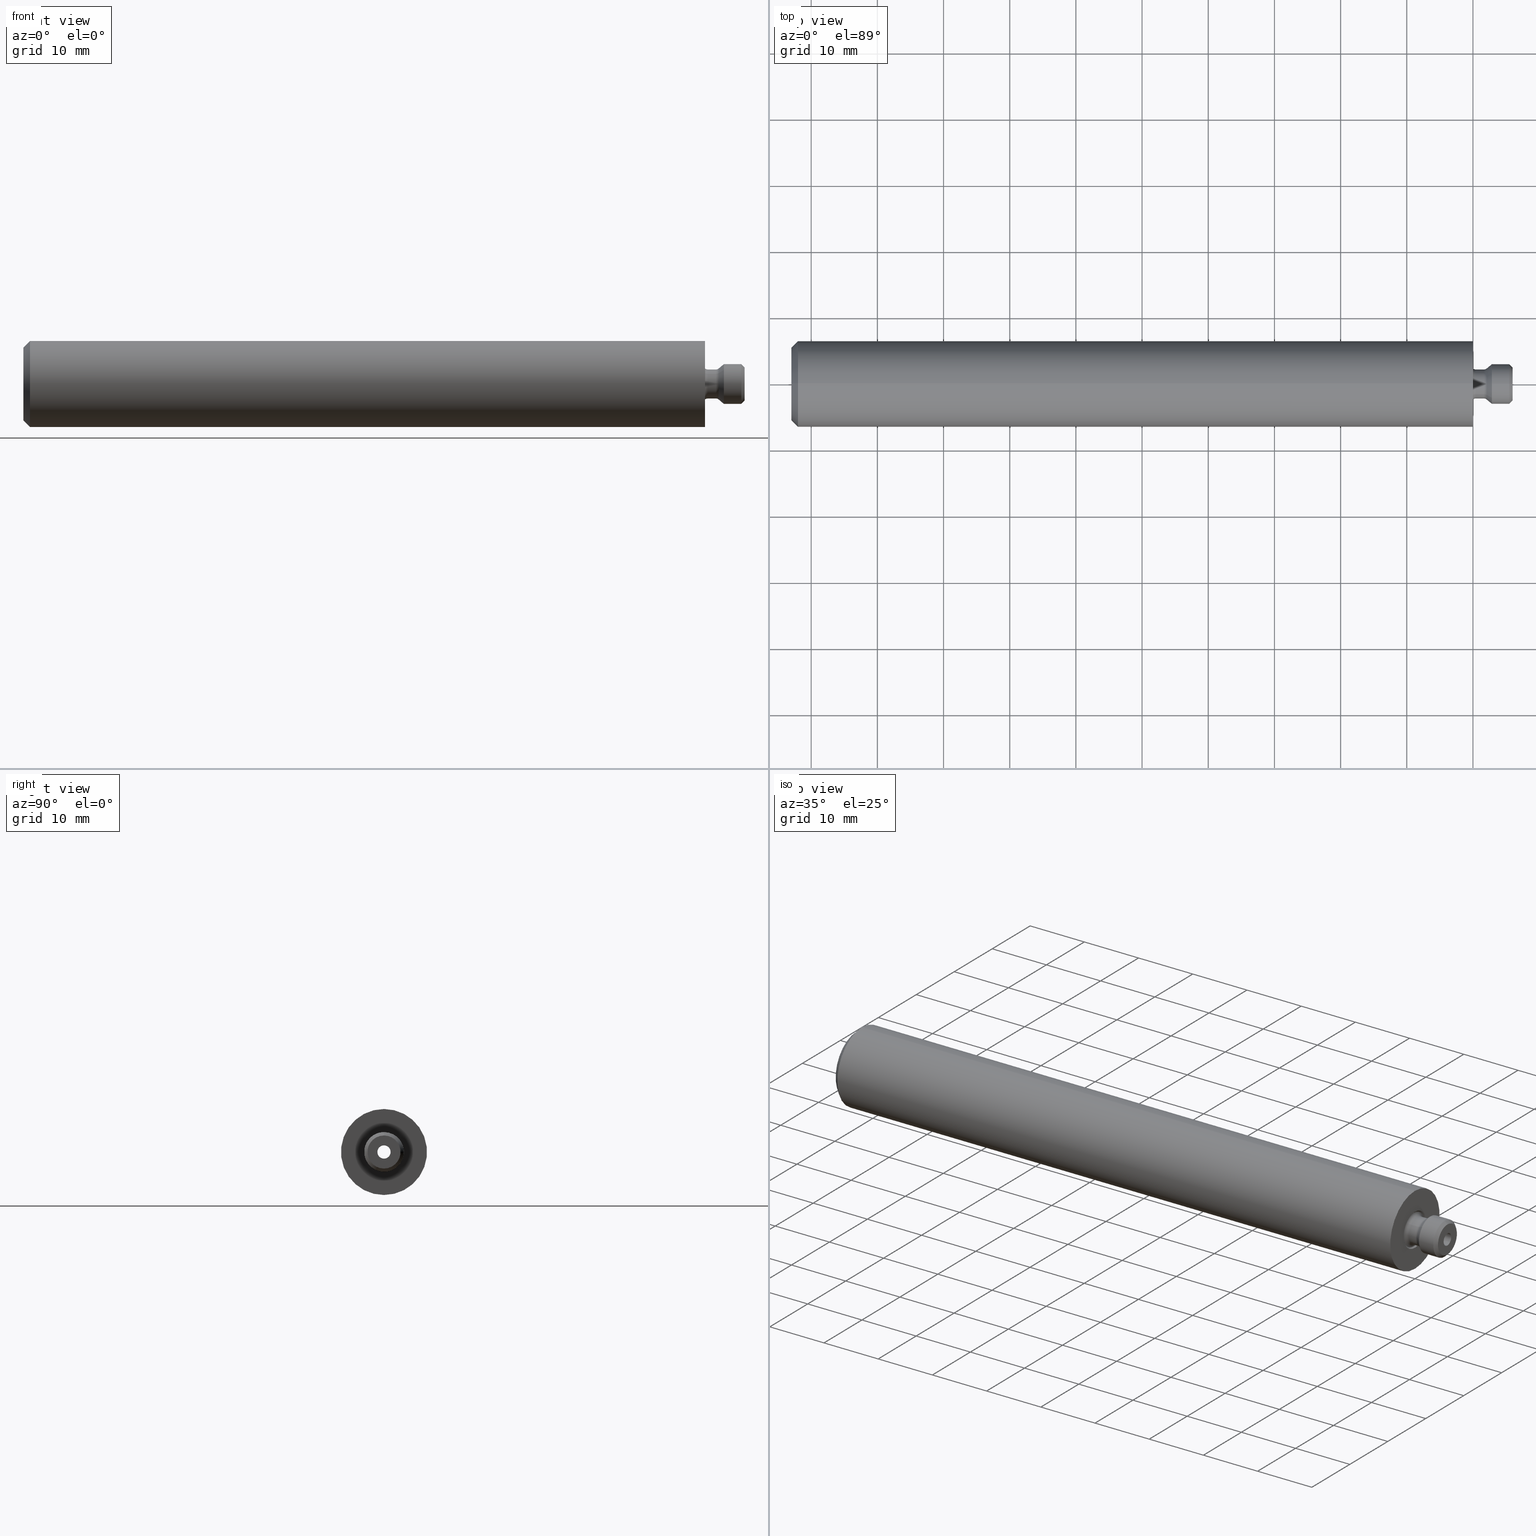
[diagram: canonical four-view strip — front | top / right | iso, engineering-drawing reading convention]
A machine part, canonical four-view strip (front | top / right | iso — engineering-drawing reading convention). The complete STEP part file that produces these views, byte-faithful:
ISO-10303-21;
HEADER;
FILE_DESCRIPTION (( 'STEP AP214' ),
    '1' );
FILE_NAME ('U13-HS6.K01.103_A.STEP',
    '2017-06-13T09:03:11',
    ( 'SWIAdmin' ),
    ( 'Hewlett-Packard Company' ),
    'SwSTEP 2.0',
    'SolidWorks 2017',
    '' );
FILE_SCHEMA (( 'AUTOMOTIVE_DESIGN' ));
ENDSEC;

DATA;
#1 = FACE_BOUND ( 'NONE', #281, .T. ) ;
#2 = VECTOR ( 'NONE', #662, 1000.000000000000000 ) ;
#3 = EDGE_LOOP ( 'NONE', ( #114, #763 ) ) ;
#4 = CARTESIAN_POINT ( 'NONE',  ( -102.0000000000000000, 0.0000000000000000000, 0.0000000000000000000 ) ) ;
#5 = ADVANCED_FACE ( 'NONE', ( #432 ), #191, .F. ) ;
#6 = CYLINDRICAL_SURFACE ( 'NONE', #659, 6.499999999999984900 ) ;
#7 = ADVANCED_FACE ( 'NONE', ( #406, #1070 ), #205, .F. ) ;
#8 = ORIENTED_EDGE ( 'NONE', *, *, #203, .T. ) ;
#9 = ORIENTED_EDGE ( 'NONE', *, *, #840, .F. ) ;
#10 = CYLINDRICAL_SURFACE ( 'NONE', #800, 2.499999999999997800 ) ;
#11 = FACE_OUTER_BOUND ( 'NONE', #3, .T. ) ;
#12 = VERTEX_POINT ( 'NONE', #312 ) ;
#13 = CARTESIAN_POINT ( 'NONE',  ( 0.0000000000000000000, 0.0000000000000000000, 0.0000000000000000000 ) ) ;
#14 = AXIS2_PLACEMENT_3D ( 'NONE', #919, #506, #673 ) ;
#15 = AXIS2_PLACEMENT_3D ( 'NONE', #286, #812, #194 ) ;
#16 = ITEM_DEFINED_TRANSFORMATION ( 'NONE', 'NONE', #576,  #409 ) ;
#17 = EDGE_CURVE ( 'NONE', #554, #264, #636, .T. ) ;
#18 = DIRECTION ( 'NONE',  ( 1.000000000000000000, 0.0000000000000000000, 0.0000000000000000000 ) ) ;
#19 = LINE ( 'NONE', #361, #228 ) ;
#20 = FILL_AREA_STYLE ('',( #531 ) ) ;
#21 = ORIENTED_EDGE ( 'NONE', *, *, #227, .T. ) ;
#22 = AXIS2_PLACEMENT_3D ( 'NONE', #118, #824, #657 ) ;
#23 = PLANE ( 'NONE',  #222 ) ;
#24 = CONICAL_SURFACE ( 'NONE', #358, 1.999999999999997300, 1.029744258676659400 ) ;
#25 = CARTESIAN_POINT ( 'NONE',  ( 15.19999999999999800, 0.0000000000000000000, 0.0000000000000000000 ) ) ;
#26 = ORIENTED_EDGE ( 'NONE', *, *, #479, .T. ) ;
#27 = DIRECTION ( 'NONE',  ( 0.0000000000000000000, 0.0000000000000000000, 1.000000000000000000 ) ) ;
#28 = DIRECTION ( 'NONE',  ( -1.000000000000000000, -0.0000000000000000000, 0.0000000000000000000 ) ) ;
#29 = VECTOR ( 'NONE', #294, 999.9999999999998900 ) ;
#30 = VECTOR ( 'NONE', #76, 1000.000000000000000 ) ;
#31 = CARTESIAN_POINT ( 'NONE',  ( 8.999999999999998200, 0.0000000000000000000, 0.0000000000000000000 ) ) ;
#32 = VERTEX_POINT ( 'NONE', #290 ) ;
#33 = ORIENTED_EDGE ( 'NONE', *, *, #690, .T. ) ;
#34 = EDGE_CURVE ( 'NONE', #543, #775, #678, .T. ) ;
#35 = PRODUCT_DEFINITION_FORMATION_WITH_SPECIFIED_SOURCE ( 'ANY', '', #635, .NOT_KNOWN. ) ;
#36 = DIRECTION ( 'NONE',  ( 1.000000000000000000, -0.0000000000000000000, -0.0000000000000000000 ) ) ;
#37 = DIRECTION ( 'NONE',  ( 0.0000000000000000000, 0.0000000000000000000, 1.000000000000000000 ) ) ;
#38 = ORIENTED_EDGE ( 'NONE', *, *, #477, .T. ) ;
#39 = DIRECTION ( 'NONE',  ( -1.000000000000000000, 0.0000000000000000000, -0.0000000000000000000 ) ) ;
#40 = VERTEX_POINT ( 'NONE', #412 ) ;
#41 = SHAPE_DEFINITION_REPRESENTATION ( #604, #157 ) ;
#42 = PRODUCT_RELATED_PRODUCT_CATEGORY ( 'part', '', ( #971 ) ) ;
#43 = DIRECTION ( 'NONE',  ( 1.000000000000000000, -0.0000000000000000000, -0.0000000000000000000 ) ) ;
#44 = EDGE_LOOP ( 'NONE', ( #58, #697, #728, #93 ) ) ;
#45 = DIRECTION ( 'NONE',  ( 0.0000000000000000000, 0.7061899382197406300, 0.7080224369023900800 ) ) ;
#46 = DIRECTION ( 'NONE',  ( 0.0000000000000000000, 0.0000000000000000000, -1.000000000000000000 ) ) ;
#47 = CARTESIAN_POINT ( 'NONE',  ( -6.375198412698429400, 0.0000000000000000000, 2.999999999999999100 ) ) ;
#48 = VERTEX_POINT ( 'NONE', #408 ) ;
#49 = DIRECTION ( 'NONE',  ( 1.000000000000000000, -0.0000000000000000000, -0.0000000000000000000 ) ) ;
#50 = FACE_BOUND ( 'NONE', #469, .T. ) ;
#51 = DIRECTION ( 'NONE',  ( 0.0000000000000000000, 0.0000000000000000000, -1.000000000000000000 ) ) ;
#52 = AXIS2_PLACEMENT_3D ( 'NONE', #162, #934, #606 ) ;
#53 = CARTESIAN_POINT ( 'NONE',  ( -0.4999999999999987200, 0.0000000000000000000, -2.499999999999998200 ) ) ;
#54 = DIRECTION ( 'NONE',  ( 0.0000000000000000000, 0.0000000000000000000, -1.000000000000000000 ) ) ;
#55 = FACE_OUTER_BOUND ( 'NONE', #195, .T. ) ;
#56 = CYLINDRICAL_SURFACE ( 'NONE', #116, 1.999999999999991800 ) ;
#57 = CARTESIAN_POINT ( 'NONE',  ( 0.5000000000000022200, 0.0000000000000000000, 0.0000000000000000000 ) ) ;
#58 = ORIENTED_EDGE ( 'NONE', *, *, #289, .F. ) ;
#59 = CARTESIAN_POINT ( 'NONE',  ( 12.05340287407536200, 2.118569814659221800, 2.124067310707170800 ) ) ;
#60 = ORIENTED_EDGE ( 'NONE', *, *, #34, .F. ) ;
#61 = CARTESIAN_POINT ( 'NONE',  ( 12.35134127222391200, 0.0000000000000000000, -3.249999999999999100 ) ) ;
#62 = AXIS2_PLACEMENT_3D ( 'NONE', #1008, #82, #683 ) ;
#63 = ORIENTED_EDGE ( 'NONE', *, *, #941, .T. ) ;
#64 = CARTESIAN_POINT ( 'NONE',  ( -0.4999999999999987200, 0.0000000000000000000, 0.0000000000000000000 ) ) ;
#65 = DIRECTION ( 'NONE',  ( -1.000000000000000000, 0.0000000000000000000, -0.0000000000000000000 ) ) ;
#66 = EDGE_LOOP ( 'NONE', ( #864, #535, #936, #933 ) ) ;
#67 = ORIENTED_EDGE ( 'NONE', *, *, #905, .T. ) ;
#68 = AXIS2_PLACEMENT_3D ( 'NONE', #434, #1022, #1001 ) ;
#69 = CARTESIAN_POINT ( 'NONE',  ( 9.599999999999997900, 3.429011037612588800E-016, -2.799999999999999800 ) ) ;
#70 = FACE_OUTER_BOUND ( 'NONE', #1064, .T. ) ;
#71 = SURFACE_SIDE_STYLE ('',( #820 ) ) ;
#72 = AXIS2_PLACEMENT_3D ( 'NONE', #589, #837, #991 ) ;
#73 = ORIENTED_EDGE ( 'NONE', *, *, #686, .F. ) ;
#74 = EDGE_CURVE ( 'NONE', #695, #12, #19, .T. ) ;
#75 = CARTESIAN_POINT ( 'NONE',  ( 10.88161785944027600, 0.0000000000000000000, 0.0000000000000000000 ) ) ;
#76 = DIRECTION ( 'NONE',  ( -1.000000000000000000, -0.0000000000000000000, 0.0000000000000000000 ) ) ;
#77 = ADVANCED_FACE ( 'NONE', ( #198 ), #1052, .T. ) ;
#78 = DIRECTION ( 'NONE',  ( 0.0000000000000000000, 0.0000000000000000000, -1.000000000000000000 ) ) ;
#79 = ORIENTED_EDGE ( 'NONE', *, *, #203, .F. ) ;
#80 = VECTOR ( 'NONE', #592, 1000.000000000000100 ) ;
#81 = AXIS2_PLACEMENT_3D ( 'NONE', #719, #182, #27 ) ;
#82 = DIRECTION ( 'NONE',  ( -1.000000000000000000, 0.0000000000000000000, 0.0000000000000000000 ) ) ;
#83 = ADVANCED_FACE ( 'NONE', ( #869, #421 ), #493, .T. ) ;
#84 = VERTEX_POINT ( 'NONE', #480 ) ;
#85 = FACE_OUTER_BOUND ( 'NONE', #1071, .T. ) ;
#86 = CIRCLE ( 'NONE', #206, 2.340373334128612800 ) ;
#87 = EDGE_LOOP ( 'NONE', ( #679, #117, #458, #354 ) ) ;
#88 = DIRECTION ( 'NONE',  ( 0.0000000000000000000, 0.0000000000000000000, -1.000000000000000000 ) ) ;
#89 = AXIS2_PLACEMENT_3D ( 'NONE', #57, #129, #389 ) ;
#90 = ORIENTED_EDGE ( 'NONE', *, *, #347, .F. ) ;
#91 = CIRCLE ( 'NONE', #235, 2.499999999999999600 ) ;
#92 = VERTEX_POINT ( 'NONE', #545 ) ;
#93 = ORIENTED_EDGE ( 'NONE', *, *, #596, .F. ) ;
#94 = ORIENTED_EDGE ( 'NONE', *, *, #230, .F. ) ;
#95 = DIRECTION ( 'NONE',  ( 0.0000000000000000000, 0.7061899382197405200, 0.7080224369023902000 ) ) ;
#96 = DIRECTION ( 'NONE',  ( 0.0000000000000000000, -0.7061899382197405200, -0.7080224369023902000 ) ) ;
#97 = ORIENTED_EDGE ( 'NONE', *, *, #751, .T. ) ;
#98 = VECTOR ( 'NONE', #841, 999.9999999999998900 ) ;
#99 = DIRECTION ( 'NONE',  ( 0.0000000000000000000, 0.0000000000000000000, -1.000000000000000000 ) ) ;
#100 = ORIENTED_EDGE ( 'NONE', *, *, #392, .T. ) ;
#101 = AXIS2_PLACEMENT_3D ( 'NONE', #884, #915, #379 ) ;
#102 = VECTOR ( 'NONE', #609, 1000.000000000000000 ) ;
#103 = ORIENTED_EDGE ( 'NONE', *, *, #452, .F. ) ;
#104 = CARTESIAN_POINT ( 'NONE',  ( -9.199999999999997500, 0.0000000000000000000, 0.0000000000000000000 ) ) ;
#105 = ORIENTED_EDGE ( 'NONE', *, *, #227, .F. ) ;
#106 = PRODUCT_DEFINITION_SHAPE ( 'NONE', 'NONE',  #803 ) ;
#107 = DIRECTION ( 'NONE',  ( 1.000000000000000000, -0.0000000000000000000, -0.0000000000000000000 ) ) ;
#108 = ORIENTED_EDGE ( 'NONE', *, *, #649, .F. ) ;
#109 = DIRECTION ( 'NONE',  ( 1.000000000000000000, -0.0000000000000000000, -0.0000000000000000000 ) ) ;
#110 = AXIS2_PLACEMENT_3D ( 'NONE', #25, #28, #95 ) ;
#111 = LINE ( 'NONE', #547, #583 ) ;
#112 = ORIENTED_EDGE ( 'NONE', *, *, #330, .T. ) ;
#113 = DIRECTION ( 'NONE',  ( -1.000000000000000000, -0.0000000000000000000, 0.0000000000000000000 ) ) ;
#114 = ORIENTED_EDGE ( 'NONE', *, *, #1020, .F. ) ;
#115 = DIRECTION ( 'NONE',  ( -1.000000000000000000, 0.0000000000000000000, -0.0000000000000000000 ) ) ;
#116 = AXIS2_PLACEMENT_3D ( 'NONE', #499, #144, #310 ) ;
#117 = ORIENTED_EDGE ( 'NONE', *, *, #230, .T. ) ;
#118 = CARTESIAN_POINT ( 'NONE',  ( 9.599999999999997900, 0.0000000000000000000, 2.799999999999999800 ) ) ;
#119 = EDGE_CURVE ( 'NONE', #339, #505, #891, .T. ) ;
#120 = CARTESIAN_POINT ( 'NONE',  ( 15.19999999999999800, 0.0000000000000000000, 0.0000000000000000000 ) ) ;
#121 = LINE ( 'NONE', #315, #98 ) ;
#122 = CARTESIAN_POINT ( 'NONE',  ( 10.88161785944027600, 0.0000000000000000000, 2.799999999999999400 ) ) ;
#123 = DIRECTION ( 'NONE',  ( -1.000000000000000000, 0.0000000000000000000, -0.0000000000000000000 ) ) ;
#124 = VERTEX_POINT ( 'NONE', #500 ) ;
#125 = AXIS2_PLACEMENT_3D ( 'NONE', #979, #729, #196 ) ;
#126 = LINE ( 'NONE', #1018, #102 ) ;
#127 = CARTESIAN_POINT ( 'NONE',  ( 0.0000000000000000000, 0.0000000000000000000, 0.0000000000000000000 ) ) ;
#128 = VERTEX_POINT ( 'NONE', #539 ) ;
#129 = DIRECTION ( 'NONE',  ( 1.000000000000000000, 0.0000000000000000000, 0.0000000000000000000 ) ) ;
#130 = DIRECTION ( 'NONE',  ( 0.0000000000000000000, 0.0000000000000000000, -1.000000000000000000 ) ) ;
#131 = DIRECTION ( 'NONE',  ( 0.0000000000000000000, 0.0000000000000000000, 1.000000000000000000 ) ) ;
#132 = VERTEX_POINT ( 'NONE', #643 ) ;
#133 = ORIENTED_EDGE ( 'NONE', *, *, #382, .T. ) ;
#134 = CARTESIAN_POINT ( 'NONE',  ( -103.0000000000000000, 0.0000000000000000000, 0.0000000000000000000 ) ) ;
#135 = DIRECTION ( 'NONE',  ( 0.0000000000000000000, 0.0000000000000000000, 1.000000000000000000 ) ) ;
#136 = LINE ( 'NONE', #266, #309 ) ;
#137 = AXIS2_PLACEMENT_3D ( 'NONE', #906, #400, #988 ) ;
#138 = ORIENTED_EDGE ( 'NONE', *, *, #119, .F. ) ;
#139 = DIRECTION ( 'NONE',  ( 0.0000000000000000000, 0.0000000000000000000, -1.000000000000000000 ) ) ;
#140 = DIRECTION ( 'NONE',  ( 0.0000000000000000000, -1.224646799147352200E-016, 1.000000000000000000 ) ) ;
#141 = DIRECTION ( 'NONE',  ( 0.0000000000000000000, -1.224646799147353000E-016, 1.000000000000000000 ) ) ;
#142 = CIRCLE ( 'NONE', #306, 2.499999999999998200 ) ;
#143 = DIRECTION ( 'NONE',  ( 0.0000000000000000000, 0.0000000000000000000, 1.000000000000000000 ) ) ;
#144 = DIRECTION ( 'NONE',  ( 1.000000000000000000, -0.0000000000000000000, -0.0000000000000000000 ) ) ;
#145 = ADVANCED_FACE ( 'NONE', ( #652 ), #384, .T. ) ;
#146 = DIRECTION ( 'NONE',  ( 0.0000000000000000000, 0.7061899382197405200, 0.7080224369023902000 ) ) ;
#147 = ORIENTED_EDGE ( 'NONE', *, *, #1013, .T. ) ;
#148 = LINE ( 'NONE', #1029, #952 ) ;
#149 = CIRCLE ( 'NONE', #767, 2.999999999999999600 ) ;
#150 = ORIENTED_EDGE ( 'NONE', *, *, #699, .T. ) ;
#151 = EDGE_CURVE ( 'NONE', #124, #962, #176, .T. ) ;
#152 = ADVANCED_FACE ( 'NONE', ( #846 ), #601, .T. ) ;
#153 = AXIS2_PLACEMENT_3D ( 'NONE', #753, #484, #88 ) ;
#154 = CIRCLE ( 'NONE', #248, 2.999999999999999100 ) ;
#155 = EDGE_LOOP ( 'NONE', ( #105, #26, #38, #771 ) ) ;
#156 = COLOUR_RGB ( '',0.7529411764705882200, 0.7529411764705882200, 0.7529411764705882200 ) ;
#157 = SHAPE_REPRESENTATION ( 'HM1-U13.001.103_A', ( #409 ), #340 ) ;
#158 = ORIENTED_EDGE ( 'NONE', *, *, #447, .T. ) ;
#159 = PRESENTATION_STYLE_ASSIGNMENT (( #877 ) ) ;
#160 = CONICAL_SURFACE ( 'NONE', #287, 2.999999999999999600, 0.7853981633974461700 ) ;
#161 = CARTESIAN_POINT ( 'NONE',  ( 15.19999999999999800, 0.0000000000000000000, 0.0000000000000000000 ) ) ;
#162 = CARTESIAN_POINT ( 'NONE',  ( 10.88161785944027600, 0.0000000000000000000, 0.0000000000000000000 ) ) ;
#163 = APPLICATION_PROTOCOL_DEFINITION ( 'draft international standard', 'automotive_design', 1998, #527 ) ;
#164 = VECTOR ( 'NONE', #578, 1000.000000000000000 ) ;
#165 = AXIS2_PLACEMENT_3D ( 'NONE', #161, #166, #169 ) ;
#166 = DIRECTION ( 'NONE',  ( -1.000000000000000000, -0.0000000000000000000, 0.0000000000000000000 ) ) ;
#167 = APPLICATION_CONTEXT ( 'automotive_design' ) ;
#168 = AXIS2_PLACEMENT_3D ( 'NONE', #875, #359, #950 ) ;
#169 = DIRECTION ( 'NONE',  ( 0.0000000000000000000, 0.7061899382197406300, 0.7080224369023900800 ) ) ;
#170 = AXIS2_PLACEMENT_3D ( 'NONE', #967, #374, #886 ) ;
#171 = CARTESIAN_POINT ( 'NONE',  ( 12.05340287407536200, 0.0000000000000000000, 0.0000000000000000000 ) ) ;
#172 = EDGE_CURVE ( 'NONE', #574, #554, #821, .T. ) ;
#173 = CARTESIAN_POINT ( 'NONE',  ( 10.88161785944027600, 0.0000000000000000000, 2.200000000000000200 ) ) ;
#174 = DIRECTION ( 'NONE',  ( 0.0000000000000000000, 0.0000000000000000000, 1.000000000000000000 ) ) ;
#175 = CONICAL_SURFACE ( 'NONE', #68, 2.999999999999999600, 0.7853981633974461700 ) ;
#176 = LINE ( 'NONE', #668, #2 ) ;
#177 = EDGE_LOOP ( 'NONE', ( #179, #1054, #748, #685, #133 ) ) ;
#178 = CARTESIAN_POINT ( 'NONE',  ( -0.4999999999999987200, 3.061616997868381200E-016, 2.499999999999998200 ) ) ;
#179 = ORIENTED_EDGE ( 'NONE', *, *, #530, .F. ) ;
#180 = AXIS2_PLACEMENT_3D ( 'NONE', #563, #43, #645 ) ;
#181 = VECTOR ( 'NONE', #725, 1000.000000000000100 ) ;
#182 = DIRECTION ( 'NONE',  ( -1.000000000000000000, 0.0000000000000000000, -0.0000000000000000000 ) ) ;
#183 = ORIENTED_EDGE ( 'NONE', *, *, #862, .F. ) ;
#184 = CARTESIAN_POINT ( 'NONE',  ( 0.0000000000000000000, 0.0000000000000000000, 0.0000000000000000000 ) ) ;
#185 = EDGE_LOOP ( 'NONE', ( #570, #298 ) ) ;
#186 = DIRECTION ( 'NONE',  ( -1.000000000000000000, 0.0000000000000000000, -0.0000000000000000000 ) ) ;
#187 = VECTOR ( 'NONE', #123, 1000.000000000000000 ) ;
#188 = PRODUCT_DEFINITION_CONTEXT ( 'detailed design', #772, 'design' ) ;
#189 = VECTOR ( 'NONE', #464, 1000.000000000000000 ) ;
#190 = DIRECTION ( 'NONE',  ( -1.000000000000000000, -0.0000000000000000000, 0.0000000000000000000 ) ) ;
#191 = TOROIDAL_SURFACE ( 'NONE', #352, 2.800000000000000300, 0.6000000000000007500 ) ;
#192 = AXIS2_PLACEMENT_3D ( 'NONE', #134, #746, #217 ) ;
#193 = CARTESIAN_POINT ( 'NONE',  ( 15.19999999999999800, 1.224646799147353200E-016, -1.000000000000000000 ) ) ;
#194 = DIRECTION ( 'NONE',  ( 0.0000000000000000000, -0.7061899382197405200, -0.7080224369023902000 ) ) ;
#195 = EDGE_LOOP ( 'NONE', ( #1015, #273, #559, #67 ) ) ;
#196 = DIRECTION ( 'NONE',  ( 0.0000000000000000000, 0.0000000000000000000, -1.000000000000000000 ) ) ;
#197 = CIRCLE ( 'NONE', #285, 2.199999999999999300 ) ;
#198 = FACE_OUTER_BOUND ( 'NONE', #716, .T. ) ;
#199 = VERTEX_POINT ( 'NONE', #808 ) ;
#200 = EDGE_CURVE ( 'NONE', #264, #667, #149, .T. ) ;
#201 = CARTESIAN_POINT ( 'NONE',  ( -12.30043030951377700, 2.449293598294703500E-016, 1.999999999999997300 ) ) ;
#202 = DIRECTION ( 'NONE',  ( -1.000000000000000000, 0.0000000000000000000, 0.0000000000000000000 ) ) ;
#203 = EDGE_CURVE ( 'NONE', #92, #962, #1031, .T. ) ;
#204 = LINE ( 'NONE', #727, #181 ) ;
#205 = PLANE ( 'NONE',  #481 ) ;
#206 = AXIS2_PLACEMENT_3D ( 'NONE', #212, #744, #131 ) ;
#207 = ORIENTED_EDGE ( 'NONE', *, *, #855, .T. ) ;
#208 = UNCERTAINTY_MEASURE_WITH_UNIT (LENGTH_MEASURE( 1.000000000000000100E-005 ), #353, 'distance_accuracy_value', 'NONE');
#209 = CARTESIAN_POINT ( 'NONE',  ( -103.0000000000000000, 0.0000000000000000000, 0.0000000000000000000 ) ) ;
#210 = VECTOR ( 'NONE', #65, 1000.000000000000000 ) ;
#211 = VECTOR ( 'NONE', #115, 1000.000000000000000 ) ;
#212 = CARTESIAN_POINT ( 'NONE',  ( 11.26729042525220100, 0.0000000000000000000, 0.0000000000000000000 ) ) ;
#213 = DIRECTION ( 'NONE',  ( -1.000000000000000000, 0.0000000000000000000, -0.0000000000000000000 ) ) ;
#214 = ORIENTED_EDGE ( 'NONE', *, *, #351, .T. ) ;
#215 = VERTEX_POINT ( 'NONE', #814 ) ;
#216 = ORIENTED_EDGE ( 'NONE', *, *, #388, .F. ) ;
#217 = DIRECTION ( 'NONE',  ( 0.0000000000000000000, 0.0000000000000000000, -1.000000000000000000 ) ) ;
#218 = CARTESIAN_POINT ( 'NONE',  ( 10.88161785944027600, 0.0000000000000000000, 0.0000000000000000000 ) ) ;
#219 = AXIS2_PLACEMENT_3D ( 'NONE', #184, #246, #253 ) ;
#220 = DIRECTION ( 'NONE',  ( 0.7071067811865490200, 8.659560562354914400E-017, 0.7071067811865460200 ) ) ;
#221 = CARTESIAN_POINT ( 'NONE',  ( 10.88161785944027600, 3.429011037612588300E-016, -2.799999999999999400 ) ) ;
#222 = AXIS2_PLACEMENT_3D ( 'NONE', #1074, #616, #99 ) ;
#223 = CARTESIAN_POINT ( 'NONE',  ( 0.0000000000000000000, 0.0000000000000000000, -6.499999999999984900 ) ) ;
#224 = CONTEXT_DEPENDENT_SHAPE_REPRESENTATION ( #1023, #831 ) ;
#225 = EDGE_CURVE ( 'NONE', #554, #574, #619, .T. ) ;
#226 = ADVANCED_FACE ( 'NONE', ( #357 ), #325, .F. ) ;
#227 = EDGE_CURVE ( 'NONE', #580, #1061, #567, .T. ) ;
#228 = VECTOR ( 'NONE', #376, 999.9999999999998900 ) ;
#229 = ORIENTED_EDGE ( 'NONE', *, *, #870, .T. ) ;
#230 = EDGE_CURVE ( 'NONE', #580, #128, #126, .T. ) ;
#231 = CARTESIAN_POINT ( 'NONE',  ( -102.0000000000000000, 0.0000000000000000000, -6.499999999999984900 ) ) ;
#232 = DIRECTION ( 'NONE',  ( 0.0000000000000000000, 0.0000000000000000000, -1.000000000000000000 ) ) ;
#233 = ADVANCED_FACE ( 'NONE', ( #795 ), #953, .F. ) ;
#234 = VERTEX_POINT ( 'NONE', #911 ) ;
#235 = AXIS2_PLACEMENT_3D ( 'NONE', #491, #569, #817 ) ;
#236 = CIRCLE ( 'NONE', #770, 2.999999999999999100 ) ;
#237 = CIRCLE ( 'NONE', #219, 2.499999999999999600 ) ;
#238 = VERTEX_POINT ( 'NONE', #304 ) ;
#239 = ADVANCED_FACE ( 'NONE', ( #769 ), #980, .F. ) ;
#240 = VERTEX_POINT ( 'NONE', #407 ) ;
#241 = LINE ( 'NONE', #562, #210 ) ;
#242 = LINE ( 'NONE', #641, #880 ) ;
#243 = EDGE_LOOP ( 'NONE', ( #827, #966, #847, #100 ) ) ;
#244 = ORIENTED_EDGE ( 'NONE', *, *, #888, .T. ) ;
#245 = ADVANCED_BREP_SHAPE_REPRESENTATION ( '', ( #501, #409 ), #701 ) ;
#246 = DIRECTION ( 'NONE',  ( -1.000000000000000000, 0.0000000000000000000, -0.0000000000000000000 ) ) ;
#247 = PRODUCT_CONTEXT ( 'NONE', #784, 'mechanical' ) ;
#248 = AXIS2_PLACEMENT_3D ( 'NONE', #910, #405, #990 ) ;
#249 = CARTESIAN_POINT ( 'NONE',  ( 0.0000000000000000000, 0.0000000000000000000, 0.0000000000000000000 ) ) ;
#250 = CARTESIAN_POINT ( 'NONE',  ( -12.30043030951377700, 0.0000000000000000000, 0.0000000000000000000 ) ) ;
#251 = EDGE_LOOP ( 'NONE', ( #787, #942 ) ) ;
#252 = SHAPE_DEFINITION_REPRESENTATION ( #106, #564 ) ;
#253 = DIRECTION ( 'NONE',  ( 0.0000000000000000000, 0.0000000000000000000, 1.000000000000000000 ) ) ;
#254 =( NAMED_UNIT ( * ) SI_UNIT ( $, .STERADIAN. ) SOLID_ANGLE_UNIT ( ) );
#255 = ORIENTED_EDGE ( 'NONE', *, *, #707, .T. ) ;
#256 =( NAMED_UNIT ( * ) PLANE_ANGLE_UNIT ( ) SI_UNIT ( $, .RADIAN. ) );
#257 = EDGE_CURVE ( 'NONE', #215, #494, #1009, .T. ) ;
#258 = ORIENTED_EDGE ( 'NONE', *, *, #1020, .T. ) ;
#259 = DIRECTION ( 'NONE',  ( 1.000000000000000000, 0.0000000000000000000, 0.0000000000000000000 ) ) ;
#260 = CYLINDRICAL_SURFACE ( 'NONE', #839, 2.999999999999999600 ) ;
#261 = DIRECTION ( 'NONE',  ( 0.7071067811865462400, 0.0000000000000000000, -0.7071067811865489100 ) ) ;
#262 = EDGE_CURVE ( 'NONE', #1011, #215, #86, .T. ) ;
#263 = ADVANCED_FACE ( 'NONE', ( #540 ), #1044, .T. ) ;
#264 = VERTEX_POINT ( 'NONE', #59 ) ;
#265 = CARTESIAN_POINT ( 'NONE',  ( 9.599999999999997900, 0.0000000000000000000, 0.0000000000000000000 ) ) ;
#266 = CARTESIAN_POINT ( 'NONE',  ( 11.08730158730159100, 3.061616997868380700E-016, 2.499999999999997800 ) ) ;
#267 = AXIS2_PLACEMENT_3D ( 'NONE', #218, #302, #135 ) ;
#268 = DIRECTION ( 'NONE',  ( 0.0000000000000000000, 0.0000000000000000000, -1.000000000000000000 ) ) ;
#269 = ORIENTED_EDGE ( 'NONE', *, *, #262, .T. ) ;
#270 = CIRCLE ( 'NONE', #1047, 1.000000000000000000 ) ;
#271 = LINE ( 'NONE', #1063, #164 ) ;
#272 = DIRECTION ( 'NONE',  ( 1.000000000000000000, -0.0000000000000000000, -0.0000000000000000000 ) ) ;
#273 = ORIENTED_EDGE ( 'NONE', *, *, #629, .F. ) ;
#274 = DIRECTION ( 'NONE',  ( 0.0000000000000000000, 0.0000000000000000000, -1.000000000000000000 ) ) ;
#275 = CARTESIAN_POINT ( 'NONE',  ( 8.999999999999998200, 2.999999999999999600, -2.168404344971008900E-016 ) ) ;
#276 = DIRECTION ( 'NONE',  ( 0.0000000000000000000, -0.7061899382197406300, -0.7080224369023900800 ) ) ;
#277 = AXIS2_PLACEMENT_3D ( 'NONE', #363, #355, #360 ) ;
#278 = ORIENTED_EDGE ( 'NONE', *, *, #74, .F. ) ;
#279 = DIRECTION ( 'NONE',  ( 0.0000000000000000000, 0.0000000000000000000, 1.000000000000000000 ) ) ;
#280 = CARTESIAN_POINT ( 'NONE',  ( -6.375198412698429400, 0.0000000000000000000, 0.0000000000000000000 ) ) ;
#281 = EDGE_LOOP ( 'NONE', ( #461, #834 ) ) ;
#282 = PRODUCT ( 'U13-HS6.K01.103_A', 'U13-HS6.K01.103_A', '', ( #1019 ) ) ;
#283 = CIRCLE ( 'NONE', #296, 0.6000000000000007500 ) ;
#284 = CARTESIAN_POINT ( 'NONE',  ( 0.5000000000000022200, 0.0000000000000000000, 0.0000000000000000000 ) ) ;
#285 = AXIS2_PLACEMENT_3D ( 'NONE', #538, #519, #871 ) ;
#286 = CARTESIAN_POINT ( 'NONE',  ( 12.05340287407536200, 0.0000000000000000000, 0.0000000000000000000 ) ) ;
#287 = AXIS2_PLACEMENT_3D ( 'NONE', #810, #113, #468 ) ;
#288 = EDGE_CURVE ( 'NONE', #313, #345, #271, .T. ) ;
#289 = EDGE_CURVE ( 'NONE', #313, #954, #515, .T. ) ;
#290 = CARTESIAN_POINT ( 'NONE',  ( -103.0000000000000100, 7.347880794884098000E-016, 5.499999999999980500 ) ) ;
#291 = CARTESIAN_POINT ( 'NONE',  ( 10.88161785944027600, 2.780176835287301900E-016, -2.200000000000000600 ) ) ;
#292 = CARTESIAN_POINT ( 'NONE',  ( 11.08730158730159100, 0.0000000000000000000, 0.0000000000000000000 ) ) ;
#293 = CIRCLE ( 'NONE', #277, 2.999999999999998700 ) ;
#294 = DIRECTION ( 'NONE',  ( -0.7071067811865491300, -0.4993516941208864800, -0.5006474663659036300 ) ) ;
#295 = DIRECTION ( 'NONE',  ( 0.0000000000000000000, 0.0000000000000000000, 1.000000000000000000 ) ) ;
#296 = AXIS2_PLACEMENT_3D ( 'NONE', #122, #650, #46 ) ;
#297 = DIRECTION ( 'NONE',  ( -1.000000000000000000, 0.0000000000000000000, -0.0000000000000000000 ) ) ;
#298 = ORIENTED_EDGE ( 'NONE', *, *, #735, .F. ) ;
#299 = FACE_OUTER_BOUND ( 'NONE', #177, .T. ) ;
#300 = ORIENTED_EDGE ( 'NONE', *, *, #568, .T. ) ;
#301 = CARTESIAN_POINT ( 'NONE',  ( 11.08730158730159100, 0.0000000000000000000, -2.499999999999997800 ) ) ;
#302 = DIRECTION ( 'NONE',  ( -1.000000000000000000, 0.0000000000000000000, -0.0000000000000000000 ) ) ;
#303 = CARTESIAN_POINT ( 'NONE',  ( 8.999999999999998200, 0.0000000000000000000, 2.799999999999999800 ) ) ;
#304 = CARTESIAN_POINT ( 'NONE',  ( 15.19999999999999800, -1.765474845549351200, -1.770056092255975800 ) ) ;
#305 = CARTESIAN_POINT ( 'NONE',  ( 5.489025772856272100, 2.118569814659221300, 2.124067310707170400 ) ) ;
#306 = AXIS2_PLACEMENT_3D ( 'NONE', #64, #669, #139 ) ;
#307 = ORIENTED_EDGE ( 'NONE', *, *, #575, .T. ) ;
#308 = FACE_OUTER_BOUND ( 'NONE', #336, .T. ) ;
#309 = VECTOR ( 'NONE', #733, 1000.000000000000000 ) ;
#310 = DIRECTION ( 'NONE',  ( 0.0000000000000000000, 0.0000000000000000000, -1.000000000000000000 ) ) ;
#311 = EDGE_LOOP ( 'NONE', ( #550, #908, #637, #1017 ) ) ;
#312 = CARTESIAN_POINT ( 'NONE',  ( -12.00000000000000000, 0.0000000000000000000, -2.499999999999996900 ) ) ;
#313 = VERTEX_POINT ( 'NONE', #825 ) ;
#314 = ORIENTED_EDGE ( 'NONE', *, *, #512, .F. ) ;
#315 = CARTESIAN_POINT ( 'NONE',  ( -12.30043030951377700, 2.449293598294703500E-016, 1.999999999999997300 ) ) ;
#316 = DIRECTION ( 'NONE',  ( 1.000000000000000000, -0.0000000000000000000, -0.0000000000000000000 ) ) ;
#317 = ADVANCED_FACE ( 'NONE', ( #299 ), #490, .T. ) ;
#318 = ORIENTED_EDGE ( 'NONE', *, *, #463, .F. ) ;
#319 = CARTESIAN_POINT ( 'NONE',  ( 9.000000000000000000, 0.0000000000000000000, 0.0000000000000000000 ) ) ;
#320 = VERTEX_POINT ( 'NONE', #1057 ) ;
#321 = CONICAL_SURFACE ( 'NONE', #373, 2.499999999999998200, 0.7853981633974501700 ) ;
#322 = ADVANCED_FACE ( 'NONE', ( #931 ), #691, .F. ) ;
#323 = EDGE_CURVE ( 'NONE', #438, #234, #903, .T. ) ;
#324 = EDGE_CURVE ( 'NONE', #48, #128, #720, .T. ) ;
#325 = CYLINDRICAL_SURFACE ( 'NONE', #101, 0.9999999999999997800 ) ;
#326 = AXIS2_PLACEMENT_3D ( 'NONE', #127, #658, #51 ) ;
#327 = ADVANCED_FACE ( 'NONE', ( #55 ), #10, .F. ) ;
#328 = ORIENTED_EDGE ( 'NONE', *, *, #855, .F. ) ;
#329 = ORIENTED_EDGE ( 'NONE', *, *, #913, .F. ) ;
#330 = EDGE_CURVE ( 'NONE', #238, #574, #456, .T. ) ;
#331 =( GEOMETRIC_REPRESENTATION_CONTEXT ( 3 ) GLOBAL_UNCERTAINTY_ASSIGNED_CONTEXT ( ( #581 ) ) GLOBAL_UNIT_ASSIGNED_CONTEXT ( ( #943, #956, #1021 ) ) REPRESENTATION_CONTEXT ( 'NONE', 'WORKASPACE' ) );
#332 = UNCERTAINTY_MEASURE_WITH_UNIT (LENGTH_MEASURE( 1.000000000000000100E-005 ), #344, 'distance_accuracy_value', 'NONE');
#333 = ORIENTED_EDGE ( 'NONE', *, *, #74, .T. ) ;
#334 = PRODUCT_DEFINITION_CONTEXT ( 'detailed design', #527, 'design' ) ;
#335 = ORIENTED_EDGE ( 'NONE', *, *, #17, .F. ) ;
#336 = EDGE_LOOP ( 'NONE', ( #258, #112, #882, #731 ) ) ;
#337 = CARTESIAN_POINT ( 'NONE',  ( -0.4999999999999987200, 0.0000000000000000000, -2.499999999999998200 ) ) ;
#338 = CIRCLE ( 'NONE', #125, 5.499999999999980500 ) ;
#339 = VERTEX_POINT ( 'NONE', #653 ) ;
#340 =( GEOMETRIC_REPRESENTATION_CONTEXT ( 3 ) GLOBAL_UNCERTAINTY_ASSIGNED_CONTEXT ( ( #332 ) ) GLOBAL_UNIT_ASSIGNED_CONTEXT ( ( #344, #450, #524 ) ) REPRESENTATION_CONTEXT ( 'NONE', 'WORKASPACE' ) );
#341 = APPLICATION_CONTEXT ( 'automotive_design' ) ;
#342 = CARTESIAN_POINT ( 'NONE',  ( -102.0000000000000000, 7.960204194457777700E-016, 6.499999999999984900 ) ) ;
#343 = AXIS2_PLACEMENT_3D ( 'NONE', #698, #411, #914 ) ;
#344 =( LENGTH_UNIT ( ) NAMED_UNIT ( * ) SI_UNIT ( .MILLI., .METRE. ) );
#345 = VERTEX_POINT ( 'NONE', #201 ) ;
#346 = AXIS2_PLACEMENT_3D ( 'NONE', #280, #39, #556 ) ;
#347 = EDGE_CURVE ( 'NONE', #339, #1032, #429, .T. ) ;
#348 =( LENGTH_UNIT ( ) NAMED_UNIT ( * ) SI_UNIT ( .MILLI., .METRE. ) );
#349 = ORIENTED_EDGE ( 'NONE', *, *, #1028, .F. ) ;
#350 = VECTOR ( 'NONE', #220, 1000.000000000000100 ) ;
#351 = EDGE_CURVE ( 'NONE', #505, #132, #241, .T. ) ;
#352 = AXIS2_PLACEMENT_3D ( 'NONE', #265, #213, #279 ) ;
#353 =( LENGTH_UNIT ( ) NAMED_UNIT ( * ) SI_UNIT ( .MILLI., .METRE. ) );
#354 = ORIENTED_EDGE ( 'NONE', *, *, #623, .F. ) ;
#355 = DIRECTION ( 'NONE',  ( 1.000000000000000000, -0.0000000000000000000, -0.0000000000000000000 ) ) ;
#356 = ADVANCED_FACE ( 'NONE', ( #1066 ), #879, .F. ) ;
#357 = FACE_OUTER_BOUND ( 'NONE', #311, .T. ) ;
#358 = AXIS2_PLACEMENT_3D ( 'NONE', #730, #969, #394 ) ;
#359 = DIRECTION ( 'NONE',  ( 1.000000000000000000, -0.0000000000000000000, -0.0000000000000000000 ) ) ;
#360 = DIRECTION ( 'NONE',  ( 0.0000000000000000000, 0.0000000000000000000, -1.000000000000000000 ) ) ;
#361 = CARTESIAN_POINT ( 'NONE',  ( -12.30043030951377700, 0.0000000000000000000, -1.999999999999997300 ) ) ;
#362 = CARTESIAN_POINT ( 'NONE',  ( -102.0000000000000000, 0.0000000000000000000, 0.0000000000000000000 ) ) ;
#363 = CARTESIAN_POINT ( 'NONE',  ( 0.0000000000000000000, 0.0000000000000000000, 0.0000000000000000000 ) ) ;
#364 = ORIENTED_EDGE ( 'NONE', *, *, #516, .T. ) ;
#365 = DIRECTION ( 'NONE',  ( -1.000000000000000000, -0.0000000000000000000, 0.0000000000000000000 ) ) ;
#366 = DIRECTION ( 'NONE',  ( 0.0000000000000000000, 0.0000000000000000000, -1.000000000000000000 ) ) ;
#367 = ORIENTED_EDGE ( 'NONE', *, *, #623, .T. ) ;
#368 = DIRECTION ( 'NONE',  ( -1.000000000000000000, 0.0000000000000000000, -0.0000000000000000000 ) ) ;
#369 = MANIFOLD_SOLID_BREP ( 'Rotation1', #483 ) ;
#370 = FACE_OUTER_BOUND ( 'NONE', #749, .T. ) ;
#371 = EDGE_LOOP ( 'NONE', ( #872, #381, #544, #740 ) ) ;
#372 = PLANE ( 'NONE',  #475 ) ;
#373 = AXIS2_PLACEMENT_3D ( 'NONE', #498, #836, #750 ) ;
#374 = DIRECTION ( 'NONE',  ( 1.000000000000000000, -0.0000000000000000000, -0.0000000000000000000 ) ) ;
#375 = DIRECTION ( 'NONE',  ( 1.000000000000000000, -0.0000000000000000000, -0.0000000000000000000 ) ) ;
#376 = DIRECTION ( 'NONE',  ( 0.5150380749100499400, 0.0000000000000000000, -0.8571673007021150000 ) ) ;
#377 = CONICAL_SURFACE ( 'NONE', #89, 2.999999999999999100, 0.7853981633974461700 ) ;
#378 = DIRECTION ( 'NONE',  ( 1.000000000000000000, 0.0000000000000000000, 0.0000000000000000000 ) ) ;
#379 = DIRECTION ( 'NONE',  ( 0.0000000000000000000, 0.0000000000000000000, 1.000000000000000000 ) ) ;
#380 = CARTESIAN_POINT ( 'NONE',  ( 14.69999999999999600, 2.118569814659221300, 2.124067310707170400 ) ) ;
#381 = ORIENTED_EDGE ( 'NONE', *, *, #913, .T. ) ;
#382 = EDGE_CURVE ( 'NONE', #667, #907, #776, .T. ) ;
#383 = CIRCLE ( 'NONE', #413, 0.6000000000000007500 ) ;
#384 = CYLINDRICAL_SURFACE ( 'NONE', #819, 6.499999999999984900 ) ;
#385 = DIRECTION ( 'NONE',  ( -1.000000000000000000, 0.0000000000000000000, -0.0000000000000000000 ) ) ;
#386 = ORIENTED_EDGE ( 'NONE', *, *, #1048, .T. ) ;
#387 = CARTESIAN_POINT ( 'NONE',  ( -6.375198412698429400, 0.0000000000000000000, 0.9999999999999997800 ) ) ;
#388 = EDGE_CURVE ( 'NONE', #1055, #852, #632, .T. ) ;
#389 = DIRECTION ( 'NONE',  ( 0.0000000000000000000, 0.0000000000000000000, -1.000000000000000000 ) ) ;
#390 = AXIS2_PLACEMENT_3D ( 'NONE', #209, #738, #130 ) ;
#391 = VECTOR ( 'NONE', #743, 1000.000000000000000 ) ;
#392 = EDGE_CURVE ( 'NONE', #695, #345, #992, .T. ) ;
#393 = VERTEX_POINT ( 'NONE', #785 ) ;
#394 = DIRECTION ( 'NONE',  ( 0.0000000000000000000, 0.0000000000000000000, -1.000000000000000000 ) ) ;
#395 = DIRECTION ( 'NONE',  ( -1.000000000000000000, -0.0000000000000000000, 0.0000000000000000000 ) ) ;
#396 = DIRECTION ( 'NONE',  ( -1.000000000000000000, 0.0000000000000000000, -0.0000000000000000000 ) ) ;
#397 = ORIENTED_EDGE ( 'NONE', *, *, #416, .T. ) ;
#398 = PRODUCT_DEFINITION_SHAPE ( 'NONE', 'NONE',  #958 ) ;
#399 = EDGE_LOOP ( 'NONE', ( #73, #628, #779, #654 ) ) ;
#400 = DIRECTION ( 'NONE',  ( 1.000000000000000000, 0.0000000000000000000, 0.0000000000000000000 ) ) ;
#401 = EDGE_LOOP ( 'NONE', ( #929, #889, #333, #451 ) ) ;
#402 = PRESENTATION_STYLE_ASSIGNMENT (( #1026 ) ) ;
#403 = SURFACE_STYLE_FILL_AREA ( #867 ) ;
#404 = LINE ( 'NONE', #726, #189 ) ;
#405 = DIRECTION ( 'NONE',  ( -1.000000000000000000, 0.0000000000000000000, -0.0000000000000000000 ) ) ;
#406 = FACE_OUTER_BOUND ( 'NONE', #704, .T. ) ;
#407 = CARTESIAN_POINT ( 'NONE',  ( 0.0000000000000000000, 1.224646799147353200E-016, -1.000000000000000000 ) ) ;
#408 = CARTESIAN_POINT ( 'NONE',  ( 9.599999999999997900, 0.0000000000000000000, 2.199999999999999300 ) ) ;
#409 = AXIS2_PLACEMENT_3D ( 'NONE', #542, #612, #615 ) ;
#410 = DIRECTION ( 'NONE',  ( -1.000000000000000000, 0.0000000000000000000, -0.0000000000000000000 ) ) ;
#411 = DIRECTION ( 'NONE',  ( -1.000000000000000000, 0.0000000000000000000, -0.0000000000000000000 ) ) ;
#412 = CARTESIAN_POINT ( 'NONE',  ( 0.0000000000000000000, 0.0000000000000000000, -2.500000000000000000 ) ) ;
#413 = AXIS2_PLACEMENT_3D ( 'NONE', #221, #752, #140 ) ;
#414 = AXIS2_PLACEMENT_3D ( 'NONE', #460, #959, #366 ) ;
#415 = EDGE_CURVE ( 'NONE', #32, #788, #963, .T. ) ;
#416 = EDGE_CURVE ( 'NONE', #238, #84, #551, .T. ) ;
#417 = DIRECTION ( 'NONE',  ( 0.0000000000000000000, 0.0000000000000000000, 1.000000000000000000 ) ) ;
#418 = AXIS2_PLACEMENT_3D ( 'NONE', #467, #624, #798 ) ;
#419 = ADVANCED_FACE ( 'NONE', ( #308 ), #175, .T. ) ;
#420 = CIRCLE ( 'NONE', #168, 6.499999999999984900 ) ;
#421 = FACE_BOUND ( 'NONE', #702, .T. ) ;
#422 = ORIENTED_EDGE ( 'NONE', *, *, #479, .F. ) ;
#423 = PLANE ( 'NONE',  #62 ) ;
#424 = AXIS2_PLACEMENT_3D ( 'NONE', #560, #378, #985 ) ;
#425 = ADVANCED_FACE ( 'NONE', ( #1, #651 ), #23, .F. ) ;
#426 = FACE_OUTER_BOUND ( 'NONE', #968, .T. ) ;
#427 = ORIENTED_EDGE ( 'NONE', *, *, #924, .F. ) ;
#428 = EDGE_LOOP ( 'NONE', ( #984, #214, #9, #90 ) ) ;
#429 = LINE ( 'NONE', #47, #187 ) ;
#430 = CYLINDRICAL_SURFACE ( 'NONE', #346, 2.999999999999999100 ) ;
#431 = APPLICATION_PROTOCOL_DEFINITION ( 'draft international standard', 'automotive_design', 1998, #784 ) ;
#432 = FACE_OUTER_BOUND ( 'NONE', #972, .T. ) ;
#433 = ORIENTED_EDGE ( 'NONE', *, *, #520, .T. ) ;
#434 = CARTESIAN_POINT ( 'NONE',  ( 14.69999999999999600, 0.0000000000000000000, 0.0000000000000000000 ) ) ;
#435 = AXIS2_PLACEMENT_3D ( 'NONE', #69, #672, #141 ) ;
#436 = DIRECTION ( 'NONE',  ( 1.000000000000000000, -0.0000000000000000000, -0.0000000000000000000 ) ) ;
#437 = APPLICATION_PROTOCOL_DEFINITION ( 'draft international standard', 'automotive_design', 1998, #341 ) ;
#438 = VERTEX_POINT ( 'NONE', #534 ) ;
#439 =( NAMED_UNIT ( * ) SI_UNIT ( $, .STERADIAN. ) SOLID_ANGLE_UNIT ( ) );
#440 = CONTEXT_DEPENDENT_SHAPE_REPRESENTATION ( #774, #1060 ) ;
#441 = SURFACE_SIDE_STYLE ('',( #858 ) ) ;
#442 = VECTOR ( 'NONE', #396, 1000.000000000000000 ) ;
#443 = DIRECTION ( 'NONE',  ( 0.0000000000000000000, 0.0000000000000000000, 1.000000000000000000 ) ) ;
#444 = SURFACE_STYLE_USAGE ( .BOTH. , #71 ) ;
#445 = DIRECTION ( 'NONE',  ( 1.000000000000000000, -0.0000000000000000000, -0.0000000000000000000 ) ) ;
#446 = CONICAL_SURFACE ( 'NONE', #424, 3.249999999999999100, 0.6981317007977349000 ) ;
#447 = EDGE_CURVE ( 'NONE', #788, #124, #420, .T. ) ;
#448 = ORIENTED_EDGE ( 'NONE', *, *, #974, .F. ) ;
#449 = AXIS2_PLACEMENT_3D ( 'NONE', #909, #747, #829 ) ;
#450 =( NAMED_UNIT ( * ) PLANE_ANGLE_UNIT ( ) SI_UNIT ( $, .RADIAN. ) );
#451 = ORIENTED_EDGE ( 'NONE', *, *, #629, .T. ) ;
#452 = EDGE_CURVE ( 'NONE', #128, #48, #197, .T. ) ;
#453 = AXIS2_PLACEMENT_3D ( 'NONE', #1027, #1034, #1035 ) ;
#454 = EDGE_LOOP ( 'NONE', ( #1010, #150, #989, #183 ) ) ;
#455 = CARTESIAN_POINT ( 'NONE',  ( 11.08730158730159100, 0.0000000000000000000, 0.0000000000000000000 ) ) ;
#456 = LINE ( 'NONE', #818, #29 ) ;
#457 = LINE ( 'NONE', #970, #211 ) ;
#458 = ORIENTED_EDGE ( 'NONE', *, *, #324, .F. ) ;
#459 = ORIENTED_EDGE ( 'NONE', *, *, #924, .T. ) ;
#460 = CARTESIAN_POINT ( 'NONE',  ( -12.00000000000000000, 0.0000000000000000000, 0.0000000000000000000 ) ) ;
#461 = ORIENTED_EDGE ( 'NONE', *, *, #640, .F. ) ;
#462 = CARTESIAN_POINT ( 'NONE',  ( -102.0000000000000000, 7.960204194457777700E-016, 6.499999999999984900 ) ) ;
#463 = EDGE_CURVE ( 'NONE', #852, #234, #1051, .T. ) ;
#464 = DIRECTION ( 'NONE',  ( -1.000000000000000000, 0.0000000000000000000, -0.0000000000000000000 ) ) ;
#465 = DIRECTION ( 'NONE',  ( 0.0000000000000000000, 0.0000000000000000000, -1.000000000000000000 ) ) ;
#466 = STYLED_ITEM ( 'NONE', ( #828 ), #1072 ) ;
#467 = CARTESIAN_POINT ( 'NONE',  ( 12.35134127222391200, 0.0000000000000000000, 0.0000000000000000000 ) ) ;
#468 = DIRECTION ( 'NONE',  ( 0.0000000000000000000, 0.7061899382197405200, 0.7080224369023902000 ) ) ;
#469 = EDGE_LOOP ( 'NONE', ( #229, #794 ) ) ;
#470 = ORIENTED_EDGE ( 'NONE', *, *, #999, .T. ) ;
#471 = CARTESIAN_POINT ( 'NONE',  ( 0.0000000000000000000, 0.0000000000000000000, 0.9999999999999997800 ) ) ;
#472 = PRODUCT_DEFINITION_FORMATION_WITH_SPECIFIED_SOURCE ( 'ANY', '', #971, .NOT_KNOWN. ) ;
#473 = STYLED_ITEM ( 'NONE', ( #600 ), #501 ) ;
#474 = CARTESIAN_POINT ( 'NONE',  ( 0.0000000000000000000, 6.499999999999984900, 0.0000000000000000000 ) ) ;
#475 = AXIS2_PLACEMENT_3D ( 'NONE', #1045, #549, #276 ) ;
#476 = VECTOR ( 'NONE', #365, 1000.000000000000000 ) ;
#477 = EDGE_CURVE ( 'NONE', #215, #1011, #845, .T. ) ;
#478 = ORIENTED_EDGE ( 'NONE', *, *, #965, .F. ) ;
#479 = EDGE_CURVE ( 'NONE', #580, #215, #383, .T. ) ;
#480 = CARTESIAN_POINT ( 'NONE',  ( 15.19999999999999800, 1.765474845549351000, 1.770056092255975400 ) ) ;
#481 = AXIS2_PLACEMENT_3D ( 'NONE', #275, #202, #295 ) ;
#482 = DIRECTION ( 'NONE',  ( 0.7660444431189760200, 7.871877887342013400E-017, 0.6427876096865415800 ) ) ;
#483 = CLOSED_SHELL ( 'NONE', ( #844, #145, #233, #675, #765, #511, #792, #322, #327, #921, #83, #786, #681, #1012 ) ) ;
#484 = DIRECTION ( 'NONE',  ( 1.000000000000000000, -0.0000000000000000000, -0.0000000000000000000 ) ) ;
#485 = FACE_OUTER_BOUND ( 'NONE', #243, .T. ) ;
#486 = CARTESIAN_POINT ( 'NONE',  ( 14.69999999999999600, 0.0000000000000000000, 0.0000000000000000000 ) ) ;
#487 = CONICAL_SURFACE ( 'NONE', #782, 2.999999999999999100, 0.7853981633974461700 ) ;
#488 = AXIS2_PLACEMENT_3D ( 'NONE', #893, #960, #548 ) ;
#489 = ORIENTED_EDGE ( 'NONE', *, *, #347, .T. ) ;
#490 = CYLINDRICAL_SURFACE ( 'NONE', #573, 2.999999999999999600 ) ;
#491 = CARTESIAN_POINT ( 'NONE',  ( 0.0000000000000000000, 0.0000000000000000000, 0.0000000000000000000 ) ) ;
#492 = LINE ( 'NONE', #843, #30 ) ;
#493 = PLANE ( 'NONE',  #656 ) ;
#494 = VERTEX_POINT ( 'NONE', #711 ) ;
#495 = CARTESIAN_POINT ( 'NONE',  ( 12.05340287407536200, -2.118569814659221300, -2.124067310707170800 ) ) ;
#496 = DIRECTION ( 'NONE',  ( 0.7660444431189760200, 0.0000000000000000000, -0.6427876096865415800 ) ) ;
#497 = DIRECTION ( 'NONE',  ( -0.0000000000000000000, 0.0000000000000000000, -1.000000000000000000 ) ) ;
#498 = CARTESIAN_POINT ( 'NONE',  ( -0.4999999999999987200, 0.0000000000000000000, 0.0000000000000000000 ) ) ;
#499 = CARTESIAN_POINT ( 'NONE',  ( 11.08730158730159100, 0.0000000000000000000, 0.0000000000000000000 ) ) ;
#500 = CARTESIAN_POINT ( 'NONE',  ( -102.0000000000000000, 0.0000000000000000000, -6.499999999999984900 ) ) ;
#501 = MANIFOLD_SOLID_BREP ( 'Rotation1', #849 ) ;
#502 = AXIS2_PLACEMENT_3D ( 'NONE', #75, #677, #143 ) ;
#503 = EDGE_LOOP ( 'NONE', ( #329, #901, #470, #244 ) ) ;
#504 = SHAPE_DEFINITION_REPRESENTATION ( #398, #930 ) ;
#505 = VERTEX_POINT ( 'NONE', #676 ) ;
#506 = DIRECTION ( 'NONE',  ( -1.000000000000000000, -0.0000000000000000000, 0.0000000000000000000 ) ) ;
#507 = ADVANCED_FACE ( 'NONE', ( #85 ), #514, .F. ) ;
#508 = CARTESIAN_POINT ( 'NONE',  ( 0.5000000000000022200, 0.0000000000000000000, -2.999999999999999100 ) ) ;
#509 = CIRCLE ( 'NONE', #165, 1.000000000000000000 ) ;
#510 = CARTESIAN_POINT ( 'NONE',  ( 11.26729042525220100, 3.270035554946243100E-016, 2.340373334128613300 ) ) ;
#511 = ADVANCED_FACE ( 'NONE', ( #1030 ), #56, .F. ) ;
#512 = EDGE_CURVE ( 'NONE', #1011, #667, #148, .T. ) ;
#513 = AXIS2_PLACEMENT_3D ( 'NONE', #572, #981, #54 ) ;
#514 = CYLINDRICAL_SURFACE ( 'NONE', #72, 0.9999999999999997800 ) ;
#515 = CIRCLE ( 'NONE', #390, 1.999999999999986200 ) ;
#516 = EDGE_CURVE ( 'NONE', #199, #124, #736, .T. ) ;
#517 = AXIS2_PLACEMENT_3D ( 'NONE', #249, #443, #18 ) ;
#518 = ORIENTED_EDGE ( 'NONE', *, *, #151, .T. ) ;
#519 = DIRECTION ( 'NONE',  ( -1.000000000000000000, 0.0000000000000000000, -0.0000000000000000000 ) ) ;
#520 = EDGE_CURVE ( 'NONE', #543, #793, #270, .T. ) ;
#521 = ORIENTED_EDGE ( 'NONE', *, *, #816, .T. ) ;
#522 = PRESENTATION_LAYER_ASSIGNMENT (  '', '', ( #466 ) ) ;
#523 = VECTOR ( 'NONE', #49, 1000.000000000000000 ) ;
#524 =( NAMED_UNIT ( * ) SI_UNIT ( $, .STERADIAN. ) SOLID_ANGLE_UNIT ( ) );
#525 = ORIENTED_EDGE ( 'NONE', *, *, #262, .F. ) ;
#526 = EDGE_LOOP ( 'NONE', ( #94, #21, #367, #103 ) ) ;
#527 = APPLICATION_CONTEXT ( 'automotive_design' ) ;
#528 = PRESENTATION_LAYER_ASSIGNMENT (  '', '', ( #473 ) ) ;
#529 = AXIS2_PLACEMENT_3D ( 'NONE', #804, #186, #724 ) ;
#530 = EDGE_CURVE ( 'NONE', #574, #907, #492, .T. ) ;
#531 = FILL_AREA_STYLE_COLOUR ( '', #664 ) ;
#532 = DIRECTION ( 'NONE',  ( 0.0000000000000000000, 0.0000000000000000000, 1.000000000000000000 ) ) ;
#533 = FACE_OUTER_BOUND ( 'NONE', #371, .T. ) ;
#534 = CARTESIAN_POINT ( 'NONE',  ( 0.0000000000000000000, 3.673940397442058400E-016, 2.999999999999998700 ) ) ;
#535 = ORIENTED_EDGE ( 'NONE', *, *, #741, .T. ) ;
#536 = CARTESIAN_POINT ( 'NONE',  ( 0.0000000000000000000, 0.0000000000000000000, 0.0000000000000000000 ) ) ;
#537 = AXIS2_PLACEMENT_3D ( 'NONE', #805, #368, #883 ) ;
#538 = CARTESIAN_POINT ( 'NONE',  ( 9.599999999999997900, 0.0000000000000000000, 0.0000000000000000000 ) ) ;
#539 = CARTESIAN_POINT ( 'NONE',  ( 9.599999999999997900, 2.694222958124176500E-016, -2.199999999999999700 ) ) ;
#540 = FACE_OUTER_BOUND ( 'NONE', #526, .T. ) ;
#541 = CARTESIAN_POINT ( 'NONE',  ( -12.30043030951377700, 0.0000000000000000000, -1.999999999999997300 ) ) ;
#542 = CARTESIAN_POINT ( 'NONE',  ( 0.0000000000000000000, 0.0000000000000000000, 0.0000000000000000000 ) ) ;
#543 = VERTEX_POINT ( 'NONE', #558 ) ;
#544 = ORIENTED_EDGE ( 'NONE', *, *, #840, .T. ) ;
#545 = CARTESIAN_POINT ( 'NONE',  ( 0.0000000000000000000, 7.960204194457777700E-016, 6.499999999999984900 ) ) ;
#546 = DIRECTION ( 'NONE',  ( -1.000000000000000000, 0.0000000000000000000, -0.0000000000000000000 ) ) ;
#547 = CARTESIAN_POINT ( 'NONE',  ( -0.4999999999999987200, 3.061616997868381200E-016, 2.499999999999998200 ) ) ;
#548 = DIRECTION ( 'NONE',  ( 0.0000000000000000000, 0.0000000000000000000, -1.000000000000000000 ) ) ;
#549 = DIRECTION ( 'NONE',  ( 1.000000000000000000, 0.0000000000000000000, 0.0000000000000000000 ) ) ;
#550 = ORIENTED_EDGE ( 'NONE', *, *, #575, .F. ) ;
#551 = CIRCLE ( 'NONE', #14, 2.500000000000000000 ) ;
#552 = CYLINDRICAL_SURFACE ( 'NONE', #81, 2.999999999999999100 ) ;
#553 = AXIS2_PLACEMENT_3D ( 'NONE', #1073, #410, #759 ) ;
#554 = VERTEX_POINT ( 'NONE', #380 ) ;
#555 = CARTESIAN_POINT ( 'NONE',  ( 11.08730158730159100, 0.0000000000000000000, 0.0000000000000000000 ) ) ;
#556 = DIRECTION ( 'NONE',  ( 0.0000000000000000000, 0.0000000000000000000, 1.000000000000000000 ) ) ;
#557 = DIRECTION ( 'NONE',  ( 1.000000000000000000, -0.0000000000000000000, -0.0000000000000000000 ) ) ;
#558 = CARTESIAN_POINT ( 'NONE',  ( 15.19999999999999800, 0.0000000000000000000, 1.000000000000000000 ) ) ;
#559 = ORIENTED_EDGE ( 'NONE', *, *, #862, .T. ) ;
#560 = CARTESIAN_POINT ( 'NONE',  ( 12.35134127222391200, 0.0000000000000000000, 0.0000000000000000000 ) ) ;
#561 = CIRCLE ( 'NONE', #435, 0.6000000000000007500 ) ;
#562 = CARTESIAN_POINT ( 'NONE',  ( -6.375198412698429400, 3.673940397442059400E-016, -2.999999999999999100 ) ) ;
#563 = CARTESIAN_POINT ( 'NONE',  ( -103.0000000000000100, 0.0000000000000000000, 0.0000000000000000000 ) ) ;
#564 = SHAPE_REPRESENTATION ( 'HM1-BG1.006.015_A', ( #409 ), #701 ) ;
#565 = CARTESIAN_POINT ( 'NONE',  ( 11.08730158730159100, 0.0000000000000000000, 0.0000000000000000000 ) ) ;
#566 = DIRECTION ( 'NONE',  ( 1.000000000000000000, -0.0000000000000000000, -0.0000000000000000000 ) ) ;
#567 = CIRCLE ( 'NONE', #52, 2.200000000000000200 ) ;
#568 = EDGE_CURVE ( 'NONE', #907, #494, #932, .T. ) ;
#569 = DIRECTION ( 'NONE',  ( -1.000000000000000000, 0.0000000000000000000, -0.0000000000000000000 ) ) ;
#570 = ORIENTED_EDGE ( 'NONE', *, *, #707, .F. ) ;
#571 = ORIENTED_EDGE ( 'NONE', *, *, #330, .F. ) ;
#572 = CARTESIAN_POINT ( 'NONE',  ( -12.30043030951377700, 0.0000000000000000000, 0.0000000000000000000 ) ) ;
#573 = AXIS2_PLACEMENT_3D ( 'NONE', #661, #395, #986 ) ;
#574 = VERTEX_POINT ( 'NONE', #815 ) ;
#575 = EDGE_CURVE ( 'NONE', #793, #240, #457, .T. ) ;
#576 = AXIS2_PLACEMENT_3D ( 'NONE', #104, #945, #259 ) ;
#577 = DIRECTION ( 'NONE',  ( -1.000000000000000000, 0.0000000000000000000, -0.0000000000000000000 ) ) ;
#578 = DIRECTION ( 'NONE',  ( 1.000000000000000000, -0.0000000000000000000, -0.0000000000000000000 ) ) ;
#579 = CARTESIAN_POINT ( 'NONE',  ( 9.000000000000000000, 0.0000000000000000000, 0.0000000000000000000 ) ) ;
#580 = VERTEX_POINT ( 'NONE', #291 ) ;
#581 = UNCERTAINTY_MEASURE_WITH_UNIT (LENGTH_MEASURE( 1.000000000000000100E-005 ), #943, 'distance_accuracy_value', 'NONE');
#582 = CARTESIAN_POINT ( 'NONE',  ( 0.5000000000000022200, 3.673940397442059400E-016, 2.999999999999999100 ) ) ;
#583 = VECTOR ( 'NONE', #799, 999.9999999999998900 ) ;
#584 = EDGE_CURVE ( 'NONE', #320, #12, #692, .T. ) ;
#585 = FILL_AREA_STYLE ('',( #923 ) ) ;
#586 = VERTEX_POINT ( 'NONE', #644 ) ;
#587 = DIRECTION ( 'NONE',  ( -1.000000000000000000, 0.0000000000000000000, -0.0000000000000000000 ) ) ;
#588 = MECHANICAL_DESIGN_GEOMETRIC_PRESENTATION_REPRESENTATION (  '', ( #466 ), #642 ) ;
#589 = CARTESIAN_POINT ( 'NONE',  ( -6.375198412698429400, 0.0000000000000000000, 0.0000000000000000000 ) ) ;
#590 = ORIENTED_EDGE ( 'NONE', *, *, #957, .F. ) ;
#591 = MECHANICAL_DESIGN_GEOMETRIC_PRESENTATION_REPRESENTATION (  '', ( #473 ), #998 ) ;
#592 = DIRECTION ( 'NONE',  ( 0.7071067811865490200, 0.0000000000000000000, -0.7071067811865460200 ) ) ;
#593 = ADVANCED_FACE ( 'NONE', ( #904 ), #430, .T. ) ;
#594 = AXIS2_PLACEMENT_3D ( 'NONE', #31, #546, #1039 ) ;
#595 = LINE ( 'NONE', #582, #350 ) ;
#596 = EDGE_CURVE ( 'NONE', #954, #695, #242, .T. ) ;
#597 = DIRECTION ( 'NONE',  ( 1.000000000000000000, -0.0000000000000000000, -0.0000000000000000000 ) ) ;
#598 = AXIS2_PLACEMENT_3D ( 'NONE', #579, #587, #639 ) ;
#599 = ADVANCED_FACE ( 'NONE', ( #1068 ), #160, .T. ) ;
#600 = PRESENTATION_STYLE_ASSIGNMENT (( #444 ) ) ;
#601 = CYLINDRICAL_SURFACE ( 'NONE', #873, 2.199999999999999700 ) ;
#602 = AXIS2_PLACEMENT_3D ( 'NONE', #1062, #577, #37 ) ;
#603 = ADVANCED_FACE ( 'NONE', ( #666, #11 ), #372, .T. ) ;
#604 = PRODUCT_DEFINITION_SHAPE ( 'NONE', 'NONE',  #856 ) ;
#605 = ORIENTED_EDGE ( 'NONE', *, *, #257, .T. ) ;
#606 = DIRECTION ( 'NONE',  ( 0.0000000000000000000, 0.0000000000000000000, 1.000000000000000000 ) ) ;
#607 = FACE_OUTER_BOUND ( 'NONE', #454, .T. ) ;
#608 = ORIENTED_EDGE ( 'NONE', *, *, #1028, .T. ) ;
#609 = DIRECTION ( 'NONE',  ( -1.000000000000000000, 0.0000000000000000000, -0.0000000000000000000 ) ) ;
#610 = APPLICATION_PROTOCOL_DEFINITION ( 'draft international standard', 'automotive_design', 1998, #167 ) ;
#611 = AXIS2_PLACEMENT_3D ( 'NONE', #319, #922, #417 ) ;
#612 = DIRECTION ( 'NONE',  ( 0.0000000000000000000, 0.0000000000000000000, 1.000000000000000000 ) ) ;
#613 = DIRECTION ( 'NONE',  ( 1.000000000000000000, 0.0000000000000000000, 0.0000000000000000000 ) ) ;
#614 = LINE ( 'NONE', #301, #391 ) ;
#615 = DIRECTION ( 'NONE',  ( 1.000000000000000000, 0.0000000000000000000, 0.0000000000000000000 ) ) ;
#616 = DIRECTION ( 'NONE',  ( 1.000000000000000000, 0.0000000000000000000, 0.0000000000000000000 ) ) ;
#617 = FILL_AREA_STYLE_COLOUR ( '', #156 ) ;
#618 = VECTOR ( 'NONE', #261, 999.9999999999998900 ) ;
#619 = CIRCLE ( 'NONE', #977, 2.999999999999999600 ) ;
#620 = ORIENTED_EDGE ( 'NONE', *, *, #323, .T. ) ;
#621 = ORIENTED_EDGE ( 'NONE', *, *, #764, .T. ) ;
#622 = DIRECTION ( 'NONE',  ( 1.000000000000000000, 0.0000000000000000000, 0.0000000000000000000 ) ) ;
#623 = EDGE_CURVE ( 'NONE', #1061, #48, #404, .T. ) ;
#624 = DIRECTION ( 'NONE',  ( 1.000000000000000000, 0.0000000000000000000, 0.0000000000000000000 ) ) ;
#625 = FACE_OUTER_BOUND ( 'NONE', #503, .T. ) ;
#626 = AXIS2_PLACEMENT_3D ( 'NONE', #976, #385, #894 ) ;
#627 = FILL_AREA_STYLE ('',( #617 ) ) ;
#628 = ORIENTED_EDGE ( 'NONE', *, *, #905, .F. ) ;
#629 = EDGE_CURVE ( 'NONE', #12, #320, #859, .T. ) ;
#630 =( GEOMETRIC_REPRESENTATION_CONTEXT ( 3 ) GLOBAL_UNCERTAINTY_ASSIGNED_CONTEXT ( ( #208 ) ) GLOBAL_UNIT_ASSIGNED_CONTEXT ( ( #353, #778, #439 ) ) REPRESENTATION_CONTEXT ( 'NONE', 'WORKASPACE' ) );
#631 = EDGE_LOOP ( 'NONE', ( #996, #760, #489, #674 ) ) ;
#632 = CIRCLE ( 'NONE', #995, 2.499999999999998200 ) ;
#633 = COLOUR_RGB ( '',0.7529411764705882200, 0.7529411764705882200, 0.7529411764705882200 ) ;
#634 = CIRCLE ( 'NONE', #529, 0.9999999999999997800 ) ;
#635 = PRODUCT ( 'HM1-BG1.006.015_A', 'HM1-BG1.006.015_A', '', ( #781 ) ) ;
#636 = LINE ( 'NONE', #305, #476 ) ;
#637 = ORIENTED_EDGE ( 'NONE', *, *, #34, .T. ) ;
#638 = DIRECTION ( 'NONE',  ( 0.0000000000000000000, 0.0000000000000000000, -1.000000000000000000 ) ) ;
#639 = DIRECTION ( 'NONE',  ( 0.0000000000000000000, 0.0000000000000000000, 1.000000000000000000 ) ) ;
#640 = EDGE_CURVE ( 'NONE', #775, #240, #634, .T. ) ;
#641 = CARTESIAN_POINT ( 'NONE',  ( 11.08730158730159100, 0.0000000000000000000, -1.999999999999991800 ) ) ;
#642 =( GEOMETRIC_REPRESENTATION_CONTEXT ( 3 ) GLOBAL_UNCERTAINTY_ASSIGNED_CONTEXT ( ( #773 ) ) GLOBAL_UNIT_ASSIGNED_CONTEXT ( ( #710, #721, #951 ) ) REPRESENTATION_CONTEXT ( 'NONE', 'WORKASPACE' ) );
#643 = CARTESIAN_POINT ( 'NONE',  ( 0.5000000000000022200, 3.673940397442060400E-016, -3.000000000000000000 ) ) ;
#644 = CARTESIAN_POINT ( 'NONE',  ( 0.0000000000000000000, 3.367778697655221500E-016, 2.500000000000000000 ) ) ;
#645 = DIRECTION ( 'NONE',  ( 0.0000000000000000000, 0.0000000000000000000, -1.000000000000000000 ) ) ;
#646 = DIRECTION ( 'NONE',  ( 0.0000000000000000000, 0.0000000000000000000, -1.000000000000000000 ) ) ;
#647 = DIRECTION ( 'NONE',  ( -1.000000000000000000, -0.0000000000000000000, 0.0000000000000000000 ) ) ;
#648 = AXIS2_PLACEMENT_3D ( 'NONE', #902, #375, #465 ) ;
#649 = EDGE_CURVE ( 'NONE', #393, #900, #833, .T. ) ;
#650 = DIRECTION ( 'NONE',  ( -0.0000000000000000000, -1.000000000000000000, 0.0000000000000000000 ) ) ;
#651 = FACE_OUTER_BOUND ( 'NONE', #1004, .T. ) ;
#652 = FACE_OUTER_BOUND ( 'NONE', #66, .T. ) ;
#653 = CARTESIAN_POINT ( 'NONE',  ( 9.000000000000000000, 0.0000000000000000000, 2.999999999999999100 ) ) ;
#654 = ORIENTED_EDGE ( 'NONE', *, *, #1065, .T. ) ;
#655 = DIRECTION ( 'NONE',  ( 1.000000000000000000, 0.0000000000000000000, -0.0000000000000000000 ) ) ;
#656 = AXIS2_PLACEMENT_3D ( 'NONE', #474, #655, #497 ) ;
#657 = DIRECTION ( 'NONE',  ( 0.0000000000000000000, 0.0000000000000000000, -1.000000000000000000 ) ) ;
#658 = DIRECTION ( 'NONE',  ( 1.000000000000000000, -0.0000000000000000000, -0.0000000000000000000 ) ) ;
#659 = AXIS2_PLACEMENT_3D ( 'NONE', #292, #557, #1049 ) ;
#660 = CYLINDRICAL_SURFACE ( 'NONE', #717, 1.999999999999991800 ) ;
#661 = CARTESIAN_POINT ( 'NONE',  ( 5.489025772856272100, 0.0000000000000000000, 0.0000000000000000000 ) ) ;
#662 = DIRECTION ( 'NONE',  ( 1.000000000000000000, -0.0000000000000000000, -0.0000000000000000000 ) ) ;
#663 = ORIENTED_EDGE ( 'NONE', *, *, #530, .T. ) ;
#664 = COLOUR_RGB ( '',0.7529411764705882200, 0.7529411764705882200, 0.7529411764705882200 ) ;
#665 = UNCERTAINTY_MEASURE_WITH_UNIT (LENGTH_MEASURE( 1.000000000000000100E-005 ), #946, 'distance_accuracy_value', 'NONE');
#666 = FACE_BOUND ( 'NONE', #758, .T. ) ;
#667 = VERTEX_POINT ( 'NONE', #881 ) ;
#668 = CARTESIAN_POINT ( 'NONE',  ( 11.08730158730159100, 0.0000000000000000000, -6.499999999999984900 ) ) ;
#669 = DIRECTION ( 'NONE',  ( 1.000000000000000000, -0.0000000000000000000, -0.0000000000000000000 ) ) ;
#670 = DIRECTION ( 'NONE',  ( 0.0000000000000000000, 0.0000000000000000000, 1.000000000000000000 ) ) ;
#671 = AXIS2_PLACEMENT_3D ( 'NONE', #4, #597, #78 ) ;
#672 = DIRECTION ( 'NONE',  ( 0.0000000000000000000, 1.000000000000000000, 1.224646799147353200E-016 ) ) ;
#673 = DIRECTION ( 'NONE',  ( 0.0000000000000000000, 0.7061899382197405200, 0.7080224369023902000 ) ) ;
#674 = ORIENTED_EDGE ( 'NONE', *, *, #888, .F. ) ;
#675 = ADVANCED_FACE ( 'NONE', ( #607 ), #806, .F. ) ;
#676 = CARTESIAN_POINT ( 'NONE',  ( 9.000000000000000000, 3.673940397442060400E-016, -3.000000000000000000 ) ) ;
#677 = DIRECTION ( 'NONE',  ( -1.000000000000000000, 0.0000000000000000000, -0.0000000000000000000 ) ) ;
#678 = LINE ( 'NONE', #387, #442 ) ;
#679 = ORIENTED_EDGE ( 'NONE', *, *, #957, .T. ) ;
#680 = DIRECTION ( 'NONE',  ( -1.000000000000000000, -0.0000000000000000000, 0.0000000000000000000 ) ) ;
#681 = ADVANCED_FACE ( 'NONE', ( #370 ), #993, .T. ) ;
#682 = CIRCLE ( 'NONE', #488, 1.999999999999997300 ) ;
#683 = DIRECTION ( 'NONE',  ( 0.0000000000000000000, 0.0000000000000000000, 1.000000000000000000 ) ) ;
#684 = SHAPE_REPRESENTATION_RELATIONSHIP ( 'NONE' , 'NONE' ,  #564, #245 ) ;
#685 = ORIENTED_EDGE ( 'NONE', *, *, #200, .T. ) ;
#686 = EDGE_CURVE ( 'NONE', #1055, #438, #111, .T. ) ;
#687 = ADVANCED_FACE ( 'NONE', ( #1016 ), #552, .T. ) ;
#688 = AXIS2_PLACEMENT_3D ( 'NONE', #708, #1050, #174 ) ;
#689 = ORIENTED_EDGE ( 'NONE', *, *, #1065, .F. ) ;
#690 = EDGE_CURVE ( 'NONE', #900, #48, #777, .T. ) ;
#691 = CONICAL_SURFACE ( 'NONE', #513, 1.999999999999997300, 1.029744258676659400 ) ;
#692 = CIRCLE ( 'NONE', #170, 2.499999999999996900 ) ;
#693 = PRODUCT_DEFINITION_CONTEXT ( 'detailed design', #167, 'design' ) ;
#694 = APPLICATION_PROTOCOL_DEFINITION ( 'draft international standard', 'automotive_design', 1998, #772 ) ;
#695 = VERTEX_POINT ( 'NONE', #541 ) ;
#696 = ORIENTED_EDGE ( 'NONE', *, *, #802, .T. ) ;
#697 = ORIENTED_EDGE ( 'NONE', *, *, #288, .T. ) ;
#698 = CARTESIAN_POINT ( 'NONE',  ( 11.26729042525220100, 0.0000000000000000000, 0.0000000000000000000 ) ) ;
#699 = EDGE_CURVE ( 'NONE', #320, #1055, #136, .T. ) ;
#700 = SURFACE_SIDE_STYLE ('',( #1038 ) ) ;
#701 =( GEOMETRIC_REPRESENTATION_CONTEXT ( 3 ) GLOBAL_UNCERTAINTY_ASSIGNED_CONTEXT ( ( #1040 ) ) GLOBAL_UNIT_ASSIGNED_CONTEXT ( ( #789, #796, #801 ) ) REPRESENTATION_CONTEXT ( 'NONE', 'WORKASPACE' ) );
#702 = EDGE_LOOP ( 'NONE', ( #689, #895 ) ) ;
#703 = EDGE_LOOP ( 'NONE', ( #982, #663, #300, #207, #335 ) ) ;
#704 = EDGE_LOOP ( 'NONE', ( #138, #478 ) ) ;
#705 = SURFACE_STYLE_USAGE ( .BOTH. , #700 ) ;
#706 = AXIS2_PLACEMENT_3D ( 'NONE', #362, #272, #955 ) ;
#707 = EDGE_CURVE ( 'NONE', #199, #32, #338, .T. ) ;
#708 = CARTESIAN_POINT ( 'NONE',  ( 9.599999999999997900, 0.0000000000000000000, 0.0000000000000000000 ) ) ;
#709 = AXIS2_PLACEMENT_3D ( 'NONE', #486, #190, #878 ) ;
#710 =( LENGTH_UNIT ( ) NAMED_UNIT ( * ) SI_UNIT ( .MILLI., .METRE. ) );
#711 = CARTESIAN_POINT ( 'NONE',  ( 12.05340287407536200, 0.0000000000000000000, -2.999999999999999600 ) ) ;
#712 = FACE_OUTER_BOUND ( 'NONE', #185, .T. ) ;
#713 = CARTESIAN_POINT ( 'NONE',  ( -6.375198412698429400, 0.0000000000000000000, 0.0000000000000000000 ) ) ;
#714 = ORIENTED_EDGE ( 'NONE', *, *, #477, .F. ) ;
#715 = CARTESIAN_POINT ( 'NONE',  ( 0.5000000000000022200, 0.0000000000000000000, 2.999999999999999100 ) ) ;
#716 = EDGE_LOOP ( 'NONE', ( #525, #920, #1003, #328, #718 ) ) ;
#717 = AXIS2_PLACEMENT_3D ( 'NONE', #1043, #109, #638 ) ;
#718 = ORIENTED_EDGE ( 'NONE', *, *, #257, .F. ) ;
#719 = CARTESIAN_POINT ( 'NONE',  ( -6.375198412698429400, 0.0000000000000000000, 0.0000000000000000000 ) ) ;
#720 = CIRCLE ( 'NONE', #626, 2.199999999999999300 ) ;
#721 =( NAMED_UNIT ( * ) PLANE_ANGLE_UNIT ( ) SI_UNIT ( $, .RADIAN. ) );
#722 = VECTOR ( 'NONE', #762, 999.9999999999998900 ) ;
#723 = ORIENTED_EDGE ( 'NONE', *, *, #172, .F. ) ;
#724 = DIRECTION ( 'NONE',  ( 0.0000000000000000000, 0.0000000000000000000, 1.000000000000000000 ) ) ;
#725 = DIRECTION ( 'NONE',  ( -0.7071067811865490200, 0.4993516941208865900, 0.5006474663659035200 ) ) ;
#726 = CARTESIAN_POINT ( 'NONE',  ( -6.375198412698429400, 0.0000000000000000000, 2.199999999999999700 ) ) ;
#727 = CARTESIAN_POINT ( 'NONE',  ( 14.69999999999999600, 2.118569814659221300, 2.124067310707170400 ) ) ;
#728 = ORIENTED_EDGE ( 'NONE', *, *, #783, .T. ) ;
#729 = DIRECTION ( 'NONE',  ( 1.000000000000000000, -0.0000000000000000000, -0.0000000000000000000 ) ) ;
#730 = CARTESIAN_POINT ( 'NONE',  ( -12.30043030951377700, 0.0000000000000000000, 0.0000000000000000000 ) ) ;
#731 = ORIENTED_EDGE ( 'NONE', *, *, #816, .F. ) ;
#732 = FACE_OUTER_BOUND ( 'NONE', #703, .T. ) ;
#733 = DIRECTION ( 'NONE',  ( 1.000000000000000000, -0.0000000000000000000, -0.0000000000000000000 ) ) ;
#734 = EDGE_LOOP ( 'NONE', ( #854, #158, #518, #79 ) ) ;
#735 = EDGE_CURVE ( 'NONE', #32, #199, #1042, .T. ) ;
#736 = LINE ( 'NONE', #231, #722 ) ;
#737 = VECTOR ( 'NONE', #496, 1000.000000000000200 ) ;
#738 = DIRECTION ( 'NONE',  ( 1.000000000000000000, -0.0000000000000000000, -0.0000000000000000000 ) ) ;
#739 = STYLED_ITEM ( 'NONE', ( #402 ), #369 ) ;
#740 = ORIENTED_EDGE ( 'NONE', *, *, #999, .F. ) ;
#741 = EDGE_CURVE ( 'NONE', #788, #92, #964, .T. ) ;
#742 = AXIS2_PLACEMENT_3D ( 'NONE', #13, #532, #622 ) ;
#743 = DIRECTION ( 'NONE',  ( 1.000000000000000000, -0.0000000000000000000, -0.0000000000000000000 ) ) ;
#744 = DIRECTION ( 'NONE',  ( -1.000000000000000000, 0.0000000000000000000, -0.0000000000000000000 ) ) ;
#745 = DIRECTION ( 'NONE',  ( -1.000000000000000000, 0.0000000000000000000, -0.0000000000000000000 ) ) ;
#746 = DIRECTION ( 'NONE',  ( 1.000000000000000000, -0.0000000000000000000, -0.0000000000000000000 ) ) ;
#747 = DIRECTION ( 'NONE',  ( -1.000000000000000000, 0.0000000000000000000, -0.0000000000000000000 ) ) ;
#748 = ORIENTED_EDGE ( 'NONE', *, *, #17, .T. ) ;
#749 = EDGE_LOOP ( 'NONE', ( #917, #892, #364, #807 ) ) ;
#750 = DIRECTION ( 'NONE',  ( 0.0000000000000000000, 0.0000000000000000000, -1.000000000000000000 ) ) ;
#751 = EDGE_CURVE ( 'NONE', #586, #40, #91, .T. ) ;
#752 = DIRECTION ( 'NONE',  ( 0.0000000000000000000, 1.000000000000000000, 1.224646799147353200E-016 ) ) ;
#753 = CARTESIAN_POINT ( 'NONE',  ( -0.4999999999999987200, 0.0000000000000000000, 0.0000000000000000000 ) ) ;
#754 = ORIENTED_EDGE ( 'NONE', *, *, #686, .T. ) ;
#755 = FACE_OUTER_BOUND ( 'NONE', #797, .T. ) ;
#756 = ORIENTED_EDGE ( 'NONE', *, *, #690, .F. ) ;
#757 = STYLED_ITEM ( 'NONE', ( #159 ), #245 ) ;
#758 = EDGE_LOOP ( 'NONE', ( #433, #608 ) ) ;
#759 = DIRECTION ( 'NONE',  ( 0.0000000000000000000, 0.0000000000000000000, 1.000000000000000000 ) ) ;
#760 = ORIENTED_EDGE ( 'NONE', *, *, #965, .T. ) ;
#761 = DIRECTION ( 'NONE',  ( 0.0000000000000000000, 0.0000000000000000000, -1.000000000000000000 ) ) ;
#762 = DIRECTION ( 'NONE',  ( 0.7071067811865512400, 0.0000000000000000000, -0.7071067811865439100 ) ) ;
#763 = ORIENTED_EDGE ( 'NONE', *, *, #416, .F. ) ;
#764 = EDGE_CURVE ( 'NONE', #1061, #1011, #283, .T. ) ;
#765 = ADVANCED_FACE ( 'NONE', ( #70 ), #24, .F. ) ;
#766 = CIRCLE ( 'NONE', #671, 6.499999999999984900 ) ;
#767 = AXIS2_PLACEMENT_3D ( 'NONE', #830, #835, #838 ) ;
#768 = ADVANCED_FACE ( 'NONE', ( #755 ), #446, .T. ) ;
#769 = FACE_OUTER_BOUND ( 'NONE', #155, .T. ) ;
#770 = AXIS2_PLACEMENT_3D ( 'NONE', #284, #297, #897 ) ;
#771 = ORIENTED_EDGE ( 'NONE', *, *, #764, .F. ) ;
#772 = APPLICATION_CONTEXT ( 'automotive_design' ) ;
#773 = UNCERTAINTY_MEASURE_WITH_UNIT (LENGTH_MEASURE( 1.000000000000000100E-005 ), #710, 'distance_accuracy_value', 'NONE');
#774 =( REPRESENTATION_RELATIONSHIP ('NONE','NONE', #930, #564 ) REPRESENTATION_RELATIONSHIP_WITH_TRANSFORMATION ( #16 )SHAPE_REPRESENTATION_RELATIONSHIP( ) );
#775 = VERTEX_POINT ( 'NONE', #471 ) ;
#776 = CIRCLE ( 'NONE', #935, 2.999999999999999600 ) ;
#777 = CIRCLE ( 'NONE', #22, 0.6000000000000007500 ) ;
#778 =( NAMED_UNIT ( * ) PLANE_ANGLE_UNIT ( ) SI_UNIT ( $, .RADIAN. ) );
#779 = ORIENTED_EDGE ( 'NONE', *, *, #463, .T. ) ;
#780 = EDGE_LOOP ( 'NONE', ( #255, #961, #448, #1041 ) ) ;
#781 = PRODUCT_CONTEXT ( 'NONE', #341, 'mechanical' ) ;
#782 = AXIS2_PLACEMENT_3D ( 'NONE', #848, #925, #232 ) ;
#783 = EDGE_CURVE ( 'NONE', #345, #695, #682, .T. ) ;
#784 = APPLICATION_CONTEXT ( 'automotive_design' ) ;
#785 = CARTESIAN_POINT ( 'NONE',  ( 8.999999999999998200, 3.429011037612588800E-016, -2.799999999999999800 ) ) ;
#786 = ADVANCED_FACE ( 'NONE', ( #940 ), #6, .T. ) ;
#787 = ORIENTED_EDGE ( 'NONE', *, *, #809, .T. ) ;
#788 = VERTEX_POINT ( 'NONE', #462 ) ;
#789 =( LENGTH_UNIT ( ) NAMED_UNIT ( * ) SI_UNIT ( .MILLI., .METRE. ) );
#790 = TOROIDAL_SURFACE ( 'NONE', #553, 2.799999999999999800, 0.6000000000000005300 ) ;
#791 =( NAMED_UNIT ( * ) SI_UNIT ( $, .STERADIAN. ) SOLID_ANGLE_UNIT ( ) );
#792 = ADVANCED_FACE ( 'NONE', ( #485 ), #660, .F. ) ;
#793 = VERTEX_POINT ( 'NONE', #193 ) ;
#794 = ORIENTED_EDGE ( 'NONE', *, *, #289, .T. ) ;
#795 = FACE_OUTER_BOUND ( 'NONE', #978, .T. ) ;
#796 =( NAMED_UNIT ( * ) PLANE_ANGLE_UNIT ( ) SI_UNIT ( $, .RADIAN. ) );
#797 = EDGE_LOOP ( 'NONE', ( #314, #714, #605, #983, #949 ) ) ;
#798 = DIRECTION ( 'NONE',  ( 0.0000000000000000000, 0.0000000000000000000, -1.000000000000000000 ) ) ;
#799 = DIRECTION ( 'NONE',  ( 0.7071067811865462400, 8.659560562354950100E-017, 0.7071067811865489100 ) ) ;
#800 = AXIS2_PLACEMENT_3D ( 'NONE', #565, #823, #1056 ) ;
#801 =( NAMED_UNIT ( * ) SI_UNIT ( $, .STERADIAN. ) SOLID_ANGLE_UNIT ( ) );
#802 = EDGE_CURVE ( 'NONE', #240, #775, #896, .T. ) ;
#803 = PRODUCT_DEFINITION ( 'UNKNOWN', '', #35, #693 ) ;
#804 = CARTESIAN_POINT ( 'NONE',  ( 0.0000000000000000000, 0.0000000000000000000, 0.0000000000000000000 ) ) ;
#805 = CARTESIAN_POINT ( 'NONE',  ( 0.0000000000000000000, 0.0000000000000000000, 0.0000000000000000000 ) ) ;
#806 = CYLINDRICAL_SURFACE ( 'NONE', #1053, 2.499999999999997800 ) ;
#807 = ORIENTED_EDGE ( 'NONE', *, *, #447, .F. ) ;
#808 = CARTESIAN_POINT ( 'NONE',  ( -103.0000000000000100, 0.0000000000000000000, -5.499999999999980500 ) ) ;
#809 = EDGE_CURVE ( 'NONE', #900, #393, #876, .T. ) ;
#810 = CARTESIAN_POINT ( 'NONE',  ( 14.69999999999999600, 0.0000000000000000000, 0.0000000000000000000 ) ) ;
#811 = PRESENTATION_LAYER_ASSIGNMENT (  '', '', ( #757 ) ) ;
#812 = DIRECTION ( 'NONE',  ( 1.000000000000000000, 0.0000000000000000000, 0.0000000000000000000 ) ) ;
#813 = LINE ( 'NONE', #508, #80 ) ;
#814 = CARTESIAN_POINT ( 'NONE',  ( 11.26729042525220100, 0.0000000000000000000, -2.340373334128613300 ) ) ;
#815 = CARTESIAN_POINT ( 'NONE',  ( 14.69999999999999600, -2.118569814659221300, -2.124067310707170800 ) ) ;
#816 = EDGE_CURVE ( 'NONE', #84, #554, #204, .T. ) ;
#817 = DIRECTION ( 'NONE',  ( 0.0000000000000000000, 0.0000000000000000000, 1.000000000000000000 ) ) ;
#818 = CARTESIAN_POINT ( 'NONE',  ( 14.69999999999999600, -2.118569814659221300, -2.124067310707170800 ) ) ;
#819 = AXIS2_PLACEMENT_3D ( 'NONE', #555, #566, #646 ) ;
#820 = SURFACE_STYLE_FILL_AREA ( #585 ) ;
#821 = CIRCLE ( 'NONE', #709, 2.999999999999999600 ) ;
#822 = CARTESIAN_POINT ( 'NONE',  ( 11.08730158730159100, 7.960204194457777700E-016, 6.499999999999984900 ) ) ;
#823 = DIRECTION ( 'NONE',  ( 1.000000000000000000, -0.0000000000000000000, -0.0000000000000000000 ) ) ;
#824 = DIRECTION ( 'NONE',  ( -0.0000000000000000000, -1.000000000000000000, 0.0000000000000000000 ) ) ;
#825 = CARTESIAN_POINT ( 'NONE',  ( -103.0000000000000000, 2.449293598294692600E-016, 1.999999999999986200 ) ) ;
#826 = CONICAL_SURFACE ( 'NONE', #648, 6.499999999999984900, 0.7853981633974430600 ) ;
#827 = ORIENTED_EDGE ( 'NONE', *, *, #288, .F. ) ;
#828 = PRESENTATION_STYLE_ASSIGNMENT (( #705 ) ) ;
#829 = DIRECTION ( 'NONE',  ( 0.0000000000000000000, 0.0000000000000000000, 1.000000000000000000 ) ) ;
#830 = CARTESIAN_POINT ( 'NONE',  ( 12.05340287407536200, 0.0000000000000000000, 0.0000000000000000000 ) ) ;
#831 = PRODUCT_DEFINITION_SHAPE ( 'NONE', 'NONE',  #1075 ) ;
#832 = ORIENTED_EDGE ( 'NONE', *, *, #783, .F. ) ;
#833 = CIRCLE ( 'NONE', #594, 2.799999999999999800 ) ;
#834 = ORIENTED_EDGE ( 'NONE', *, *, #802, .F. ) ;
#835 = DIRECTION ( 'NONE',  ( 1.000000000000000000, 0.0000000000000000000, 0.0000000000000000000 ) ) ;
#836 = DIRECTION ( 'NONE',  ( 1.000000000000000000, -0.0000000000000000000, -0.0000000000000000000 ) ) ;
#837 = DIRECTION ( 'NONE',  ( -1.000000000000000000, 0.0000000000000000000, -0.0000000000000000000 ) ) ;
#838 = DIRECTION ( 'NONE',  ( 0.0000000000000000000, -0.7061899382197405200, -0.7080224369023902000 ) ) ;
#839 = AXIS2_PLACEMENT_3D ( 'NONE', #1006, #680, #146 ) ;
#840 = EDGE_CURVE ( 'NONE', #1032, #132, #236, .T. ) ;
#841 = DIRECTION ( 'NONE',  ( 0.5150380749100499400, 1.049727191138621900E-016, 0.8571673007021150000 ) ) ;
#842 = DIRECTION ( 'NONE',  ( 0.7071067811865512400, 8.659560562354888500E-017, 0.7071067811865439100 ) ) ;
#843 = CARTESIAN_POINT ( 'NONE',  ( 5.489025772856272100, -2.118569814659221300, -2.124067310707170800 ) ) ;
#844 = ADVANCED_FACE ( 'NONE', ( #1058 ), #826, .T. ) ;
#845 = CIRCLE ( 'NONE', #343, 2.340373334128612800 ) ;
#846 = FACE_OUTER_BOUND ( 'NONE', #87, .T. ) ;
#847 = ORIENTED_EDGE ( 'NONE', *, *, #596, .T. ) ;
#848 = CARTESIAN_POINT ( 'NONE',  ( 0.5000000000000022200, 0.0000000000000000000, 0.0000000000000000000 ) ) ;
#849 = CLOSED_SHELL ( 'NONE', ( #419, #1002, #1007, #687, #356, #152, #239, #507, #77, #768, #226, #927, #263, #5, #7, #593, #850, #425, #317, #599, #603 ) ) ;
#850 = ADVANCED_FACE ( 'NONE', ( #625 ), #377, .T. ) ;
#851 = CIRCLE ( 'NONE', #137, 2.999999999999999600 ) ;
#852 = VERTEX_POINT ( 'NONE', #53 ) ;
#853 = PRESENTATION_LAYER_ASSIGNMENT (  '', '', ( #739 ) ) ;
#854 = ORIENTED_EDGE ( 'NONE', *, *, #741, .F. ) ;
#855 = EDGE_CURVE ( 'NONE', #494, #264, #851, .T. ) ;
#856 = PRODUCT_DEFINITION ( 'UNKNOWN', '', #472, #188 ) ;
#857 = UNCERTAINTY_MEASURE_WITH_UNIT (LENGTH_MEASURE( 1.000000000000000100E-005 ), #348, 'distance_accuracy_value', 'NONE');
#858 = SURFACE_STYLE_FILL_AREA ( #20 ) ;
#859 = CIRCLE ( 'NONE', #414, 2.499999999999996900 ) ;
#860 = VECTOR ( 'NONE', #842, 999.9999999999998900 ) ;
#861 = ORIENTED_EDGE ( 'NONE', *, *, #324, .T. ) ;
#862 = EDGE_CURVE ( 'NONE', #12, #852, #614, .T. ) ;
#863 = DIRECTION ( 'NONE',  ( 0.0000000000000000000, 0.0000000000000000000, -1.000000000000000000 ) ) ;
#864 = ORIENTED_EDGE ( 'NONE', *, *, #974, .T. ) ;
#865 = MECHANICAL_DESIGN_GEOMETRIC_PRESENTATION_REPRESENTATION (  '', ( #757 ), #331 ) ;
#866 = FILL_AREA_STYLE_COLOUR ( '', #633 ) ;
#867 = FILL_AREA_STYLE ('',( #866 ) ) ;
#868 = COLOUR_RGB ( '',0.7529411764705882200, 0.7529411764705882200, 0.7529411764705882200 ) ;
#869 = FACE_OUTER_BOUND ( 'NONE', #916, .T. ) ;
#870 = EDGE_CURVE ( 'NONE', #954, #313, #1036, .T. ) ;
#871 = DIRECTION ( 'NONE',  ( 0.0000000000000000000, 0.0000000000000000000, 1.000000000000000000 ) ) ;
#872 = ORIENTED_EDGE ( 'NONE', *, *, #751, .F. ) ;
#873 = AXIS2_PLACEMENT_3D ( 'NONE', #713, #745, #670 ) ;
#874 = SURFACE_SIDE_STYLE ('',( #403 ) ) ;
#875 = CARTESIAN_POINT ( 'NONE',  ( -102.0000000000000000, 0.0000000000000000000, 0.0000000000000000000 ) ) ;
#876 = CIRCLE ( 'NONE', #602, 2.799999999999999800 ) ;
#877 = SURFACE_STYLE_USAGE ( .BOTH. , #874 ) ;
#878 = DIRECTION ( 'NONE',  ( 0.0000000000000000000, 0.7061899382197405200, 0.7080224369023902000 ) ) ;
#879 = TOROIDAL_SURFACE ( 'NONE', #688, 2.800000000000000300, 0.6000000000000007500 ) ;
#880 = VECTOR ( 'NONE', #36, 1000.000000000000000 ) ;
#881 = CARTESIAN_POINT ( 'NONE',  ( 12.05340287407536200, 3.673940397442059400E-016, 2.999999999999999600 ) ) ;
#882 = ORIENTED_EDGE ( 'NONE', *, *, #225, .F. ) ;
#883 = DIRECTION ( 'NONE',  ( 0.0000000000000000000, 0.0000000000000000000, 1.000000000000000000 ) ) ;
#884 = CARTESIAN_POINT ( 'NONE',  ( -6.375198412698429400, 0.0000000000000000000, 0.0000000000000000000 ) ) ;
#885 =( GEOMETRIC_REPRESENTATION_CONTEXT ( 3 ) GLOBAL_UNCERTAINTY_ASSIGNED_CONTEXT ( ( #857 ) ) GLOBAL_UNIT_ASSIGNED_CONTEXT ( ( #348, #944, #254 ) ) REPRESENTATION_CONTEXT ( 'NONE', 'WORKASPACE' ) );
#886 = DIRECTION ( 'NONE',  ( 0.0000000000000000000, 0.0000000000000000000, -1.000000000000000000 ) ) ;
#887 = AXIS2_PLACEMENT_3D ( 'NONE', #536, #445, #268 ) ;
#888 = EDGE_CURVE ( 'NONE', #132, #1032, #154, .T. ) ;
#889 = ORIENTED_EDGE ( 'NONE', *, *, #392, .F. ) ;
#890 = CARTESIAN_POINT ( 'NONE',  ( 0.0000000000000000000, 0.0000000000000000000, 0.0000000000000000000 ) ) ;
#891 = CIRCLE ( 'NONE', #598, 2.999999999999999100 ) ;
#892 = ORIENTED_EDGE ( 'NONE', *, *, #735, .T. ) ;
#893 = CARTESIAN_POINT ( 'NONE',  ( -12.30043030951377700, 0.0000000000000000000, 0.0000000000000000000 ) ) ;
#894 = DIRECTION ( 'NONE',  ( 0.0000000000000000000, 0.0000000000000000000, 1.000000000000000000 ) ) ;
#895 = ORIENTED_EDGE ( 'NONE', *, *, #323, .F. ) ;
#896 = CIRCLE ( 'NONE', #537, 0.9999999999999997800 ) ;
#897 = DIRECTION ( 'NONE',  ( 0.0000000000000000000, 0.0000000000000000000, 1.000000000000000000 ) ) ;
#898 = SHAPE_REPRESENTATION_RELATIONSHIP ( 'NONE' , 'NONE' ,  #157, #1072 ) ;
#899 = DIRECTION ( 'NONE',  ( 1.000000000000000000, -0.0000000000000000000, -0.0000000000000000000 ) ) ;
#900 = VERTEX_POINT ( 'NONE', #303 ) ;
#901 = ORIENTED_EDGE ( 'NONE', *, *, #1048, .F. ) ;
#902 = CARTESIAN_POINT ( 'NONE',  ( -102.0000000000000000, 0.0000000000000000000, 0.0000000000000000000 ) ) ;
#903 = CIRCLE ( 'NONE', #326, 2.999999999999998700 ) ;
#904 = FACE_OUTER_BOUND ( 'NONE', #631, .T. ) ;
#905 = EDGE_CURVE ( 'NONE', #852, #1055, #142, .T. ) ;
#906 = CARTESIAN_POINT ( 'NONE',  ( 12.05340287407536200, 0.0000000000000000000, 0.0000000000000000000 ) ) ;
#907 = VERTEX_POINT ( 'NONE', #495 ) ;
#908 = ORIENTED_EDGE ( 'NONE', *, *, #520, .F. ) ;
#909 = CARTESIAN_POINT ( 'NONE',  ( -6.375198412698429400, 0.0000000000000000000, 0.0000000000000000000 ) ) ;
#910 = CARTESIAN_POINT ( 'NONE',  ( 0.5000000000000022200, 0.0000000000000000000, 0.0000000000000000000 ) ) ;
#911 = CARTESIAN_POINT ( 'NONE',  ( 0.0000000000000000000, 0.0000000000000000000, -2.999999999999998700 ) ) ;
#912 = DIRECTION ( 'NONE',  ( 0.0000000000000000000, 0.0000000000000000000, -1.000000000000000000 ) ) ;
#913 = EDGE_CURVE ( 'NONE', #586, #1032, #595, .T. ) ;
#914 = DIRECTION ( 'NONE',  ( 0.0000000000000000000, 0.0000000000000000000, 1.000000000000000000 ) ) ;
#915 = DIRECTION ( 'NONE',  ( -1.000000000000000000, 0.0000000000000000000, -0.0000000000000000000 ) ) ;
#916 = EDGE_LOOP ( 'NONE', ( #147, #8 ) ) ;
#917 = ORIENTED_EDGE ( 'NONE', *, *, #415, .F. ) ;
#918 = ITEM_DEFINED_TRANSFORMATION ( 'NONE', 'NONE', #517,  #409 ) ;
#919 = CARTESIAN_POINT ( 'NONE',  ( 15.19999999999999800, 0.0000000000000000000, 0.0000000000000000000 ) ) ;
#920 = ORIENTED_EDGE ( 'NONE', *, *, #512, .T. ) ;
#921 = ADVANCED_FACE ( 'NONE', ( #1025 ), #321, .F. ) ;
#922 = DIRECTION ( 'NONE',  ( -1.000000000000000000, 0.0000000000000000000, -0.0000000000000000000 ) ) ;
#923 = FILL_AREA_STYLE_COLOUR ( '', #868 ) ;
#924 = EDGE_CURVE ( 'NONE', #393, #128, #561, .T. ) ;
#925 = DIRECTION ( 'NONE',  ( 1.000000000000000000, 0.0000000000000000000, 0.0000000000000000000 ) ) ;
#926 = AXIS2_PLACEMENT_3D ( 'NONE', #890, #899, #912 ) ;
#927 = ADVANCED_FACE ( 'NONE', ( #426 ), #790, .F. ) ;
#928 = CIRCLE ( 'NONE', #887, 6.499999999999984900 ) ;
#929 = ORIENTED_EDGE ( 'NONE', *, *, #941, .F. ) ;
#930 = SHAPE_REPRESENTATION ( 'U13-HS6.K01.103_A', ( #742, #517, #576 ), #630 ) ;
#931 = FACE_OUTER_BOUND ( 'NONE', #401, .T. ) ;
#932 = CIRCLE ( 'NONE', #15, 2.999999999999999600 ) ;
#933 = ORIENTED_EDGE ( 'NONE', *, *, #151, .F. ) ;
#934 = DIRECTION ( 'NONE',  ( -1.000000000000000000, 0.0000000000000000000, -0.0000000000000000000 ) ) ;
#936 = ORIENTED_EDGE ( 'NONE', *, *, #1013, .F. ) ;
#935 = AXIS2_PLACEMENT_3D ( 'NONE', #171, #613, #96 ) ;
#937 = APPLICATION_CONTEXT ( 'automotive_design' ) ;
#938 = ORIENTED_EDGE ( 'NONE', *, *, #809, .F. ) ;
#939 = CARTESIAN_POINT ( 'NONE',  ( -0.4999999999999987200, 0.0000000000000000000, 0.0000000000000000000 ) ) ;
#940 = FACE_OUTER_BOUND ( 'NONE', #734, .T. ) ;
#941 = EDGE_CURVE ( 'NONE', #345, #320, #121, .T. ) ;
#942 = ORIENTED_EDGE ( 'NONE', *, *, #649, .T. ) ;
#943 =( LENGTH_UNIT ( ) NAMED_UNIT ( * ) SI_UNIT ( .MILLI., .METRE. ) );
#944 =( NAMED_UNIT ( * ) PLANE_ANGLE_UNIT ( ) SI_UNIT ( $, .RADIAN. ) );
#945 = DIRECTION ( 'NONE',  ( 0.0000000000000000000, -0.7061899382197405200, 0.7080224369023900800 ) ) ;
#946 =( LENGTH_UNIT ( ) NAMED_UNIT ( * ) SI_UNIT ( .MILLI., .METRE. ) );
#947 = CIRCLE ( 'NONE', #110, 2.500000000000000000 ) ;
#948 = APPLICATION_PROTOCOL_DEFINITION ( 'draft international standard', 'automotive_design', 1998, #937 ) ;
#949 = ORIENTED_EDGE ( 'NONE', *, *, #382, .F. ) ;
#950 = DIRECTION ( 'NONE',  ( 0.0000000000000000000, 0.0000000000000000000, -1.000000000000000000 ) ) ;
#951 =( NAMED_UNIT ( * ) SI_UNIT ( $, .STERADIAN. ) SOLID_ANGLE_UNIT ( ) );
#952 = VECTOR ( 'NONE', #482, 1000.000000000000200 ) ;
#953 = CONICAL_SURFACE ( 'NONE', #153, 2.499999999999998200, 0.7853981633974501700 ) ;
#954 = VERTEX_POINT ( 'NONE', #1000 ) ;
#955 = DIRECTION ( 'NONE',  ( 0.0000000000000000000, 0.0000000000000000000, -1.000000000000000000 ) ) ;
#956 =( NAMED_UNIT ( * ) PLANE_ANGLE_UNIT ( ) SI_UNIT ( $, .RADIAN. ) );
#957 = EDGE_CURVE ( 'NONE', #1061, #580, #1005, .T. ) ;
#958 = PRODUCT_DEFINITION ( 'UNKNOWN', '', #1014, #334 ) ;
#959 = DIRECTION ( 'NONE',  ( 1.000000000000000000, -0.0000000000000000000, -0.0000000000000000000 ) ) ;
#960 = DIRECTION ( 'NONE',  ( 1.000000000000000000, -0.0000000000000000000, -0.0000000000000000000 ) ) ;
#961 = ORIENTED_EDGE ( 'NONE', *, *, #415, .T. ) ;
#962 = VERTEX_POINT ( 'NONE', #223 ) ;
#963 = LINE ( 'NONE', #342, #860 ) ;
#964 = LINE ( 'NONE', #822, #523 ) ;
#965 = EDGE_CURVE ( 'NONE', #505, #339, #973, .T. ) ;
#966 = ORIENTED_EDGE ( 'NONE', *, *, #870, .F. ) ;
#967 = CARTESIAN_POINT ( 'NONE',  ( -12.00000000000000000, 0.0000000000000000000, 0.0000000000000000000 ) ) ;
#968 = EDGE_LOOP ( 'NONE', ( #422, #590, #621, #269 ) ) ;
#969 = DIRECTION ( 'NONE',  ( 1.000000000000000000, -0.0000000000000000000, -0.0000000000000000000 ) ) ;
#970 = CARTESIAN_POINT ( 'NONE',  ( -6.375198412698429400, 1.224646799147353000E-016, -0.9999999999999997800 ) ) ;
#971 = PRODUCT ( 'HM1-U13.001.103_A', 'HM1-U13.001.103_A', '', ( #247 ) ) ;
#972 = EDGE_LOOP ( 'NONE', ( #427, #938, #33, #861 ) ) ;
#973 = CIRCLE ( 'NONE', #611, 2.999999999999999100 ) ;
#974 = EDGE_CURVE ( 'NONE', #124, #788, #766, .T. ) ;
#975 = ORIENTED_EDGE ( 'NONE', *, *, #584, .T. ) ;
#976 = CARTESIAN_POINT ( 'NONE',  ( 9.599999999999997900, 0.0000000000000000000, 0.0000000000000000000 ) ) ;
#977 = AXIS2_PLACEMENT_3D ( 'NONE', #987, #1069, #1059 ) ;
#978 = EDGE_LOOP ( 'NONE', ( #216, #754, #620, #318 ) ) ;
#979 = CARTESIAN_POINT ( 'NONE',  ( -103.0000000000000100, 0.0000000000000000000, 0.0000000000000000000 ) ) ;
#980 = TOROIDAL_SURFACE ( 'NONE', #267, 2.799999999999999800, 0.6000000000000005300 ) ;
#981 = DIRECTION ( 'NONE',  ( 1.000000000000000000, -0.0000000000000000000, -0.0000000000000000000 ) ) ;
#982 = ORIENTED_EDGE ( 'NONE', *, *, #225, .T. ) ;
#983 = ORIENTED_EDGE ( 'NONE', *, *, #568, .F. ) ;
#984 = ORIENTED_EDGE ( 'NONE', *, *, #119, .T. ) ;
#985 = DIRECTION ( 'NONE',  ( 0.0000000000000000000, 0.0000000000000000000, -1.000000000000000000 ) ) ;
#986 = DIRECTION ( 'NONE',  ( 0.0000000000000000000, 0.7061899382197405200, 0.7080224369023902000 ) ) ;
#987 = CARTESIAN_POINT ( 'NONE',  ( 14.69999999999999600, 0.0000000000000000000, 0.0000000000000000000 ) ) ;
#988 = DIRECTION ( 'NONE',  ( 0.0000000000000000000, -0.7061899382197405200, -0.7080224369023902000 ) ) ;
#989 = ORIENTED_EDGE ( 'NONE', *, *, #388, .T. ) ;
#990 = DIRECTION ( 'NONE',  ( 0.0000000000000000000, 0.0000000000000000000, 1.000000000000000000 ) ) ;
#991 = DIRECTION ( 'NONE',  ( 0.0000000000000000000, 0.0000000000000000000, 1.000000000000000000 ) ) ;
#992 = CIRCLE ( 'NONE', #1046, 1.999999999999997300 ) ;
#993 = CONICAL_SURFACE ( 'NONE', #706, 6.499999999999984900, 0.7853981633974430600 ) ;
#994 = EDGE_LOOP ( 'NONE', ( #571, #397, #521, #723 ) ) ;
#995 = AXIS2_PLACEMENT_3D ( 'NONE', #939, #436, #863 ) ;
#996 = ORIENTED_EDGE ( 'NONE', *, *, #351, .F. ) ;
#997 = EDGE_LOOP ( 'NONE', ( #108, #459, #1037, #756 ) ) ;
#998 =( GEOMETRIC_REPRESENTATION_CONTEXT ( 3 ) GLOBAL_UNCERTAINTY_ASSIGNED_CONTEXT ( ( #665 ) ) GLOBAL_UNIT_ASSIGNED_CONTEXT ( ( #946, #256, #791 ) ) REPRESENTATION_CONTEXT ( 'NONE', 'WORKASPACE' ) );
#999 = EDGE_CURVE ( 'NONE', #40, #132, #813, .T. ) ;
#1000 = CARTESIAN_POINT ( 'NONE',  ( -103.0000000000000000, 0.0000000000000000000, -1.999999999999986200 ) ) ;
#1001 = DIRECTION ( 'NONE',  ( 0.0000000000000000000, 0.7061899382197405200, 0.7080224369023902000 ) ) ;
#1002 = ADVANCED_FACE ( 'NONE', ( #732 ), #260, .T. ) ;
#1003 = ORIENTED_EDGE ( 'NONE', *, *, #200, .F. ) ;
#1004 = EDGE_LOOP ( 'NONE', ( #386, #97 ) ) ;
#1005 = CIRCLE ( 'NONE', #502, 2.200000000000000200 ) ;
#1006 = CARTESIAN_POINT ( 'NONE',  ( 5.489025772856272100, 0.0000000000000000000, 0.0000000000000000000 ) ) ;
#1007 = ADVANCED_FACE ( 'NONE', ( #533 ), #487, .T. ) ;
#1008 = CARTESIAN_POINT ( 'NONE',  ( -103.0000000000000100, 1.999999999999986200, 0.0000000000000000000 ) ) ;
#1009 = LINE ( 'NONE', #61, #737 ) ;
#1010 = ORIENTED_EDGE ( 'NONE', *, *, #584, .F. ) ;
#1011 = VERTEX_POINT ( 'NONE', #510 ) ;
#1012 = ADVANCED_FACE ( 'NONE', ( #50, #712 ), #423, .T. ) ;
#1013 = EDGE_CURVE ( 'NONE', #962, #92, #928, .T. ) ;
#1014 = PRODUCT_DEFINITION_FORMATION_WITH_SPECIFIED_SOURCE ( 'ANY', '', #282, .NOT_KNOWN. ) ;
#1015 = ORIENTED_EDGE ( 'NONE', *, *, #699, .F. ) ;
#1016 = FACE_OUTER_BOUND ( 'NONE', #428, .T. ) ;
#1017 = ORIENTED_EDGE ( 'NONE', *, *, #640, .T. ) ;
#1018 = CARTESIAN_POINT ( 'NONE',  ( -6.375198412698429400, 2.694222958124176500E-016, -2.199999999999999700 ) ) ;
#1019 = PRODUCT_CONTEXT ( 'NONE', #937, 'mechanical' ) ;
#1020 = EDGE_CURVE ( 'NONE', #84, #238, #947, .T. ) ;
#1021 =( NAMED_UNIT ( * ) SI_UNIT ( $, .STERADIAN. ) SOLID_ANGLE_UNIT ( ) );
#1022 = DIRECTION ( 'NONE',  ( -1.000000000000000000, -0.0000000000000000000, 0.0000000000000000000 ) ) ;
#1023 =( REPRESENTATION_RELATIONSHIP ('NONE','NONE', #930, #157 ) REPRESENTATION_RELATIONSHIP_WITH_TRANSFORMATION ( #918 )SHAPE_REPRESENTATION_RELATIONSHIP( ) );
#1024 = PRODUCT_RELATED_PRODUCT_CATEGORY ( 'part', '', ( #635 ) ) ;
#1025 = FACE_OUTER_BOUND ( 'NONE', #399, .T. ) ;
#1026 = SURFACE_STYLE_USAGE ( .BOTH. , #441 ) ;
#1027 = CARTESIAN_POINT ( 'NONE',  ( 0.0000000000000000000, 0.0000000000000000000, 0.0000000000000000000 ) ) ;
#1028 = EDGE_CURVE ( 'NONE', #793, #543, #509, .T. ) ;
#1029 = CARTESIAN_POINT ( 'NONE',  ( 12.35134127222391200, 3.980102097228896800E-016, 3.249999999999999100 ) ) ;
#1030 = FACE_OUTER_BOUND ( 'NONE', #44, .T. ) ;
#1031 = CIRCLE ( 'NONE', #926, 6.499999999999984900 ) ;
#1032 = VERTEX_POINT ( 'NONE', #715 ) ;
#1033 = MECHANICAL_DESIGN_GEOMETRIC_PRESENTATION_REPRESENTATION (  '', ( #739 ), #885 ) ;
#1034 = DIRECTION ( 'NONE',  ( 0.0000000000000000000, 0.0000000000000000000, 1.000000000000000000 ) ) ;
#1035 = DIRECTION ( 'NONE',  ( 1.000000000000000000, 0.0000000000000000000, 0.0000000000000000000 ) ) ;
#1036 = CIRCLE ( 'NONE', #192, 1.999999999999986200 ) ;
#1037 = ORIENTED_EDGE ( 'NONE', *, *, #452, .T. ) ;
#1038 = SURFACE_STYLE_FILL_AREA ( #627 ) ;
#1039 = DIRECTION ( 'NONE',  ( 0.0000000000000000000, 0.0000000000000000000, 1.000000000000000000 ) ) ;
#1040 = UNCERTAINTY_MEASURE_WITH_UNIT (LENGTH_MEASURE( 1.000000000000000100E-005 ), #789, 'distance_accuracy_value', 'NONE');
#1041 = ORIENTED_EDGE ( 'NONE', *, *, #516, .F. ) ;
#1042 = CIRCLE ( 'NONE', #180, 5.499999999999980500 ) ;
#1043 = CARTESIAN_POINT ( 'NONE',  ( 11.08730158730159100, 0.0000000000000000000, 0.0000000000000000000 ) ) ;
#1044 = CYLINDRICAL_SURFACE ( 'NONE', #449, 2.199999999999999700 ) ;
#1045 = CARTESIAN_POINT ( 'NONE',  ( 15.19999999999999800, -1.765474845549351400, -1.770056092255975400 ) ) ;
#1046 = AXIS2_PLACEMENT_3D ( 'NONE', #250, #316, #761 ) ;
#1047 = AXIS2_PLACEMENT_3D ( 'NONE', #120, #647, #45 ) ;
#1048 = EDGE_CURVE ( 'NONE', #40, #586, #237, .T. ) ;
#1049 = DIRECTION ( 'NONE',  ( 0.0000000000000000000, 0.0000000000000000000, -1.000000000000000000 ) ) ;
#1050 = DIRECTION ( 'NONE',  ( -1.000000000000000000, 0.0000000000000000000, -0.0000000000000000000 ) ) ;
#1051 = LINE ( 'NONE', #337, #618 ) ;
#1052 = CONICAL_SURFACE ( 'NONE', #418, 3.249999999999999100, 0.6981317007977349000 ) ;
#1053 = AXIS2_PLACEMENT_3D ( 'NONE', #455, #107, #274 ) ;
#1054 = ORIENTED_EDGE ( 'NONE', *, *, #172, .T. ) ;
#1055 = VERTEX_POINT ( 'NONE', #178 ) ;
#1056 = DIRECTION ( 'NONE',  ( 0.0000000000000000000, 0.0000000000000000000, -1.000000000000000000 ) ) ;
#1057 = CARTESIAN_POINT ( 'NONE',  ( -12.00000000000000000, 3.061616997868379700E-016, 2.499999999999996900 ) ) ;
#1058 = FACE_OUTER_BOUND ( 'NONE', #780, .T. ) ;
#1059 = DIRECTION ( 'NONE',  ( 0.0000000000000000000, 0.7061899382197405200, 0.7080224369023902000 ) ) ;
#1060 = PRODUCT_DEFINITION_SHAPE ( 'NONE', 'NONE',  #1076 ) ;
#1061 = VERTEX_POINT ( 'NONE', #173 ) ;
#1062 = CARTESIAN_POINT ( 'NONE',  ( 8.999999999999998200, 0.0000000000000000000, 0.0000000000000000000 ) ) ;
#1063 = CARTESIAN_POINT ( 'NONE',  ( 11.08730158730159100, 2.449293598294696100E-016, 1.999999999999991800 ) ) ;
#1064 = EDGE_LOOP ( 'NONE', ( #832, #63, #975, #278 ) ) ;
#1065 = EDGE_CURVE ( 'NONE', #234, #438, #293, .T. ) ;
#1066 = FACE_OUTER_BOUND ( 'NONE', #997, .T. ) ;
#1067 = PRODUCT_RELATED_PRODUCT_CATEGORY ( 'part', '', ( #282 ) ) ;
#1068 = FACE_OUTER_BOUND ( 'NONE', #994, .T. ) ;
#1069 = DIRECTION ( 'NONE',  ( -1.000000000000000000, -0.0000000000000000000, 0.0000000000000000000 ) ) ;
#1070 = FACE_BOUND ( 'NONE', #251, .T. ) ;
#1071 = EDGE_LOOP ( 'NONE', ( #349, #307, #696, #60 ) ) ;
#1072 = ADVANCED_BREP_SHAPE_REPRESENTATION ( '', ( #369, #409 ), #340 ) ;
#1073 = CARTESIAN_POINT ( 'NONE',  ( 10.88161785944027600, 0.0000000000000000000, 0.0000000000000000000 ) ) ;
#1074 = CARTESIAN_POINT ( 'NONE',  ( 0.0000000000000000000, 1.000000000000000000, 0.0000000000000000000 ) ) ;
#1075 = NEXT_ASSEMBLY_USAGE_OCCURRENCE ( 'NAUO1', ' ', ' ', #958, #856, $ ) ;
#1076 = NEXT_ASSEMBLY_USAGE_OCCURRENCE ( 'NAUO2', ' ', ' ', #958, #803, $ ) ;
ENDSEC;
END-ISO-10303-21;
